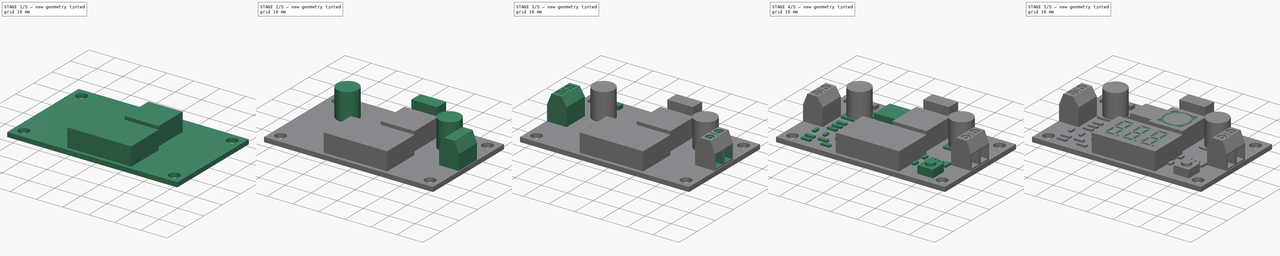
[diagram: build sequence overview — one tinted view per stage of 5, left to right]
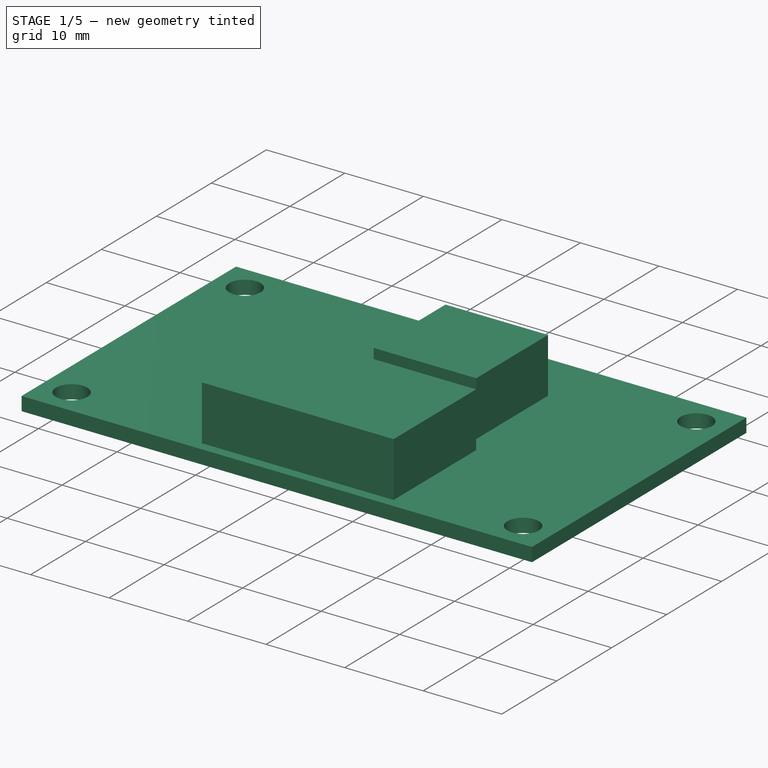
[diagram: stage 1 of 5 — iso view after this stage's code; geometry added in this stage tinted green]
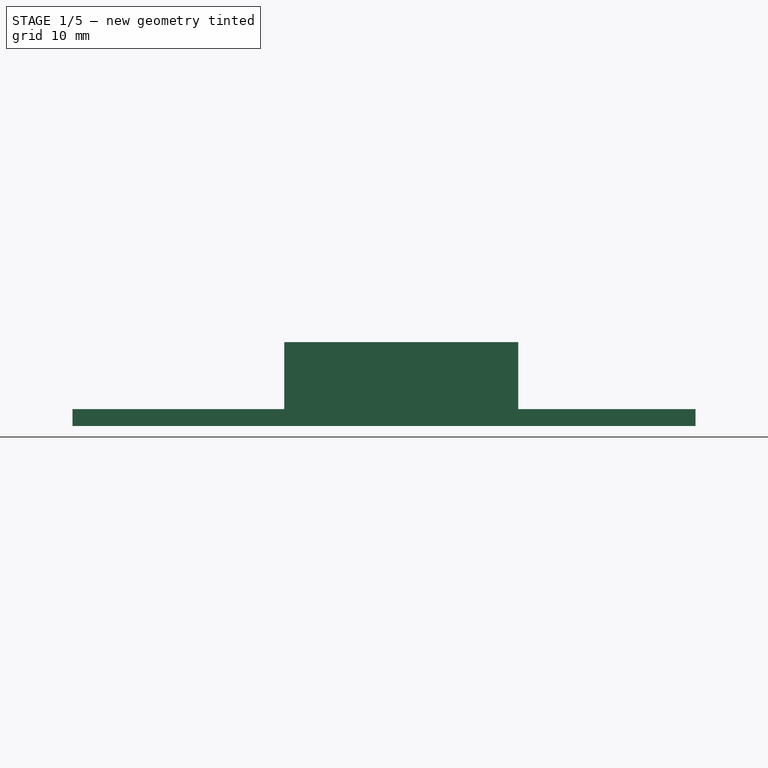
[diagram: stage 1 of 5 — front view after this stage's code; geometry added in this stage tinted green]
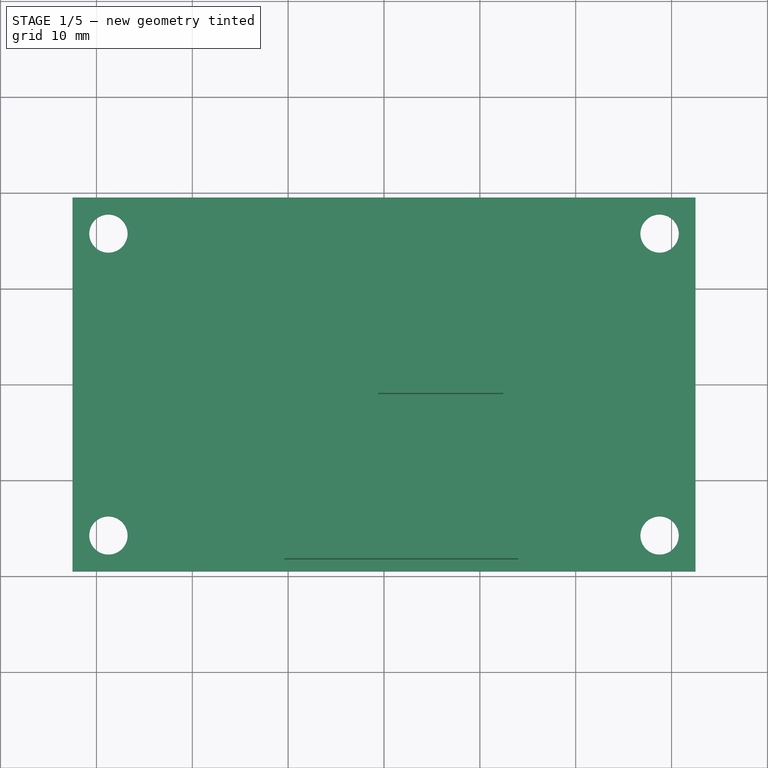
[diagram: stage 1 of 5 — top view after this stage's code; geometry added in this stage tinted green]
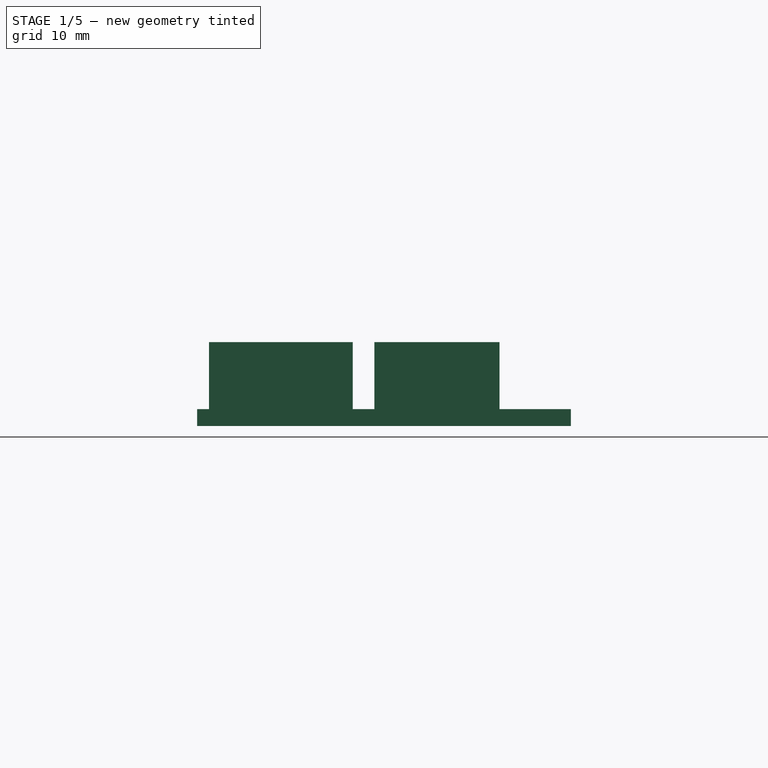
[diagram: stage 1 of 5 — right view after this stage's code; geometry added in this stage tinted green]
FCSTD DOCUMENT  (FreeCAD 1.0R39109 (Git))
Label: regulator
License: All rights reserved
LicenseURL: http://en.wikipedia.org/wiki/All_rights_reserved
objects: Sketcher::SketchObject×18, PartDesign::Pad×11, PartDesign::Pocket×7, Image::ImagePlane×1, PartDesign::Mirrored×1, PartDesign::Fillet×1, PartDesign::LinearPattern×1, PartDesign::Body×1
note: 98 computed .brp shape members not serialized (recipe doc carries the construction recipe); baked Part::Feature solids carry a one-line shape summary decoded from their .brp

FEATURE [Sketcher::SketchObject] Sketch
  ArcFitTolerance = 1e-06
  AttachmentSupport = -> [XY_Plane]
  FullyConstrained = true
  MakeInternals = false
  MapMode = 5
  sketch-geometry (5):
    g0: LineSegment StartX=-32.5 StartY=19.5 StartZ=0 EndX=-32.5 EndY=-19.5 EndZ=0
    g1: LineSegment StartX=-32.5 StartY=-19.5 StartZ=0 EndX=32.5 EndY=-19.5 EndZ=0
    g2: LineSegment StartX=32.5 StartY=-19.5 StartZ=0 EndX=32.5 EndY=19.5 EndZ=0
    g3: LineSegment StartX=32.5 StartY=19.5 StartZ=0 EndX=-32.5 EndY=19.5 EndZ=0
    g4: GeomPoint [constr] X=0 Y=0 Z=0
  constraints (12):
    c: Coincident(g0,g1)
    c: Coincident(g1,g2)
    c: Coincident(g2,g3)
    c: Coincident(g3,g0)
    c: Vertical(g0)
    c: Vertical(g2)
    c: Horizontal(g1)
    c: Horizontal(g3)
    c: Symmetric(g2,g0,g4)
    c: Coincident(g4,g-1)
    c: DistanceY(g2,g2) = 39
    c: DistanceX(g3,g3) = 65
FEATURE [PartDesign::Pad] Pad  label="PCBPad"
  Direction = (0,0,1)
  Length = 1.75
  Length2 = 10
  Profile = -> Sketch
  ReferenceAxis = -> Sketch [N_Axis]
  Refine = true
  Suppressed = false
  Type = 0
FEATURE [Image::ImagePlane] regulator
  Placement = pos=(0,0,0) rot=(0,0,1;1.5708rad)
  XSize = 41.0117
  YSize = 69.7288
  expr: XSize = 126.19 * 0.325 mm
  expr: YSize = 214.55 * 0.325 mm
FEATURE [Sketcher::SketchObject] Sketch001
  ArcFitTolerance = 1e-06
  AttachmentSupport = -> [Pad]
  ExternalGeometry = -> [Pad]
  FullyConstrained = false
  MakeInternals = false
  MapMode = 5
  Placement = pos=(0,0,1.75) rot=(0,0,1;0rad)
  sketch-geometry (12):
    g0: Circle CenterX=28.75 CenterY=-15.75 CenterZ=0 NormalX=0 NormalY=0 NormalZ=1 AngleXU=0 Radius=2
    g1: GeomPoint X=28.75 Y=-17.75 Z=0
    g2: GeomPoint X=30.75 Y=-15.75 Z=0
    g3: Circle CenterX=28.75 CenterY=15.75 CenterZ=0 NormalX=0 NormalY=0 NormalZ=1 AngleXU=0 Radius=2
    g4: GeomPoint X=28.75 Y=17.75 Z=0
    g5: GeomPoint X=30.75 Y=15.75 Z=0
    g6: Circle CenterX=-28.75 CenterY=-15.75 CenterZ=0 NormalX=0 NormalY=0 NormalZ=1 AngleXU=0 Radius=2
    g7: GeomPoint X=-28.75 Y=-17.75 Z=0
    g8: GeomPoint X=-30.75 Y=-15.75 Z=0
    g9: Circle CenterX=-28.75 CenterY=15.75 CenterZ=0 NormalX=0 NormalY=0 NormalZ=1 AngleXU=0 Radius=2
    g10: GeomPoint X=-28.75 Y=17.75 Z=0
    g11: GeomPoint X=-30.75 Y=15.75 Z=0
  constraints (16):
    c: Radius(g0) = 2
    c: PointOnObject(g1,g0)
    c: PointOnObject(g2,g0)
    c: Horizontal(g2,g0)
    c: Vertical(g1,g0)
    c: DistanceX(g2,g-4) = 1.75
    c: DistanceY(g-4,g1) = 1.75
    c: Radius(g3) = 2
    c: PointOnObject(g4,g3)
    c: PointOnObject(g5,g3)
    c: Radius(g6) = 2
    c: PointOnObject(g7,g6)
    c: PointOnObject(g8,g6)
    c: Radius(g9) = 2
    c: PointOnObject(g10,g9)
    c: PointOnObject(g11,g9)
FEATURE [PartDesign::Pocket] Pocket  label="ScrewPocket"
  BaseFeature = -> Pad
  Direction = (0,0,-1)
  Length = 5
  Length2 = 5
  Profile = -> Sketch001
  ReferenceAxis = -> Sketch001 [N_Axis]
  Refine = true
  Suppressed = false
  Type = 2
FEATURE [Sketcher::SketchObject] Sketch002
  ArcFitTolerance = 1e-06
  AttachmentSupport = -> [Pocket]
  FullyConstrained = true
  MakeInternals = false
  MapMode = 5
  Placement = pos=(0,0,1.75) rot=(0,0,1;0rad)
  sketch-geometry (4):
    g0: LineSegment StartX=-10.405 StartY=-3.263 StartZ=0 EndX=-10.405 EndY=-18.263 EndZ=0
    g1: LineSegment StartX=-10.405 StartY=-18.263 StartZ=0 EndX=14.012 EndY=-18.263 EndZ=0
    g2: LineSegment StartX=14.012 StartY=-18.263 StartZ=0 EndX=14.012 EndY=-3.263 EndZ=0
    g3: LineSegment StartX=14.012 StartY=-3.263 StartZ=0 EndX=-10.405 EndY=-3.263 EndZ=0
  constraints (12):
    c: Coincident(g0,g1)
    c: Coincident(g1,g2)
    c: Coincident(g2,g3)
    c: Coincident(g3,g0)
    c: Vertical(g0)
    c: Vertical(g2)
    c: Horizontal(g1)
    c: Horizontal(g3)
    c: DistanceY(g2,g2) = 15
    c: DistanceX(g1,g1) = 24.417
    c: DistanceY(g0,g-1) = 3.263
    c: DistanceX(g-1,g2) = 14.012
FEATURE [PartDesign::Pad] Pad001  label="OctScreenPad"
  BaseFeature = -> Pocket
  Direction = (0,0,1)
  Length = 7
  Length2 = 10
  Profile = -> Sketch002
  ReferenceAxis = -> Sketch002 [N_Axis]
  Refine = true
  Suppressed = false
  Type = 0
FEATURE [Sketcher::SketchObject] Sketch003
  ArcFitTolerance = 1e-06
  AttachmentSupport = -> [Pad001]
  FullyConstrained = true
  MakeInternals = false
  MapMode = 5
  Placement = pos=(0,0,1.75) rot=(0,0,1;0rad)
  sketch-geometry (4):
    g0: LineSegment StartX=-0.612 StartY=12.053 StartZ=0 EndX=-0.612 EndY=-1.005 EndZ=0
    g1: LineSegment StartX=-0.612 StartY=-1.005 StartZ=0 EndX=12.446 EndY=-1.005 EndZ=0
    g2: LineSegment StartX=12.446 StartY=-1.005 StartZ=0 EndX=12.446 EndY=12.053 EndZ=0
    g3: LineSegment StartX=12.446 StartY=12.053 StartZ=0 EndX=-0.612 EndY=12.053 EndZ=0
  constraints (12):
    c: Coincident(g0,g1)
    c: Coincident(g1,g2)
    c: Coincident(g2,g3)
    c: Coincident(g3,g0)
    c: Vertical(g0)
    c: Vertical(g2)
    c: Horizontal(g1)
    c: Horizontal(g3)
    c: Equal(g1,g2)
    c: DistanceY(g0,g-1) = 1.005
    c: DistanceX(g0,g-1) = 0.612
    c: DistanceX(g1,g1) = 13.058
FEATURE [PartDesign::Pad] Pad002  label="470Pad"
  BaseFeature = -> Pad001
  Direction = (0,0,1)
  Length = 7
  Length2 = 10
  Profile = -> Sketch003
  ReferenceAxis = -> Sketch003 [N_Axis]
  Refine = true
  Suppressed = false
  Type = 0
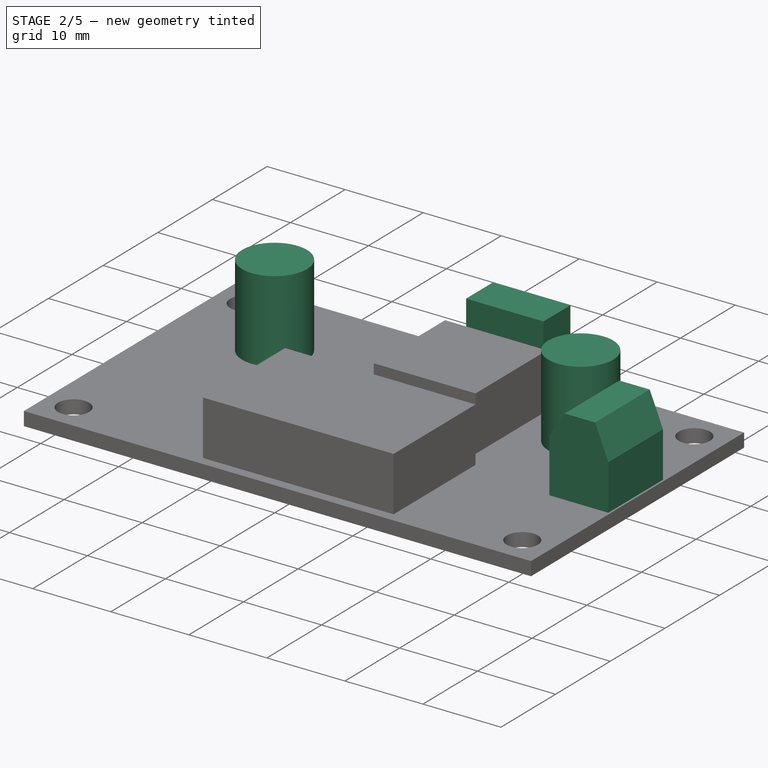
[diagram: stage 2 of 5 — iso view after this stage's code; geometry added in this stage tinted green]
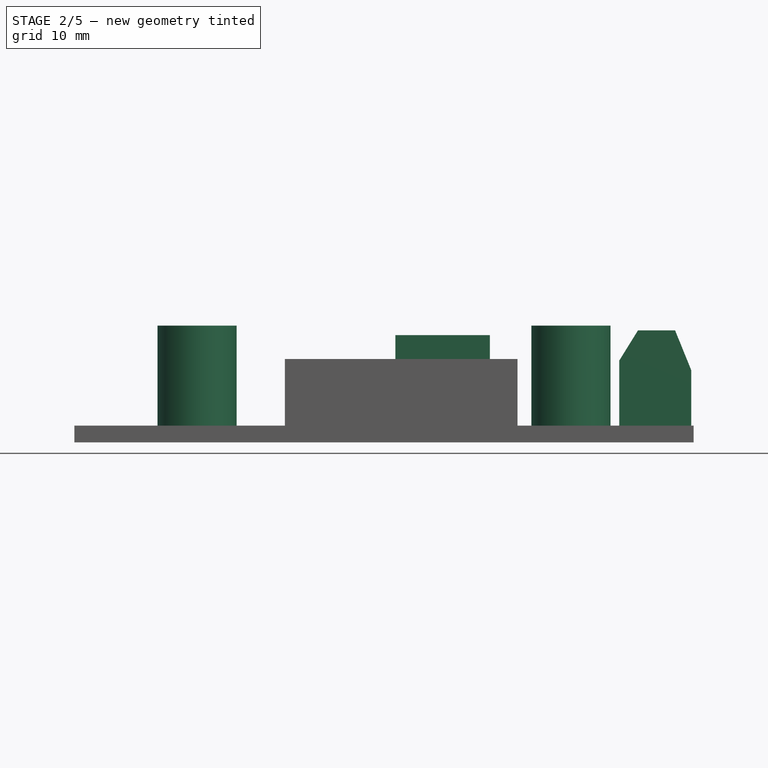
[diagram: stage 2 of 5 — front view after this stage's code; geometry added in this stage tinted green]
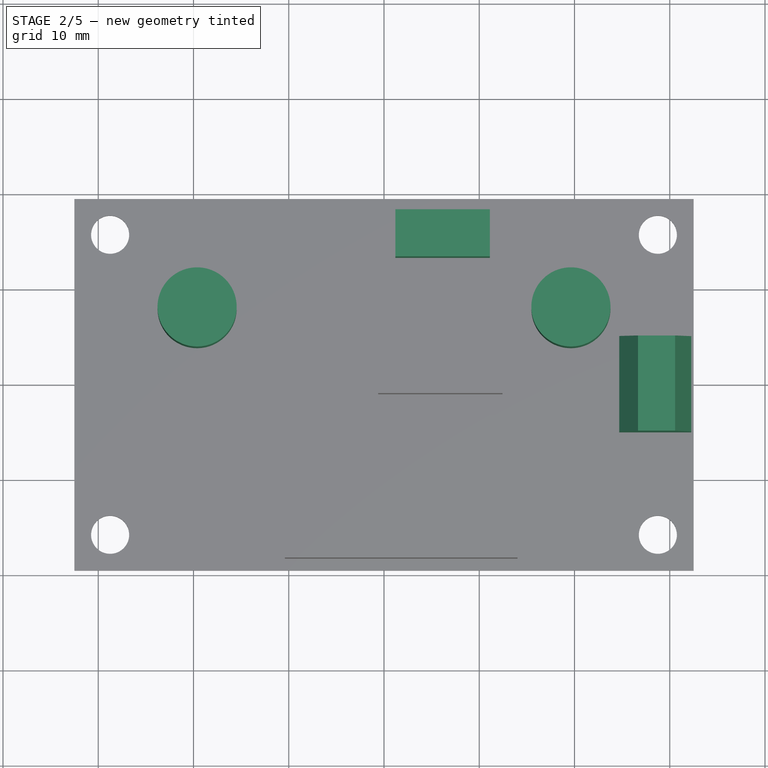
[diagram: stage 2 of 5 — top view after this stage's code; geometry added in this stage tinted green]
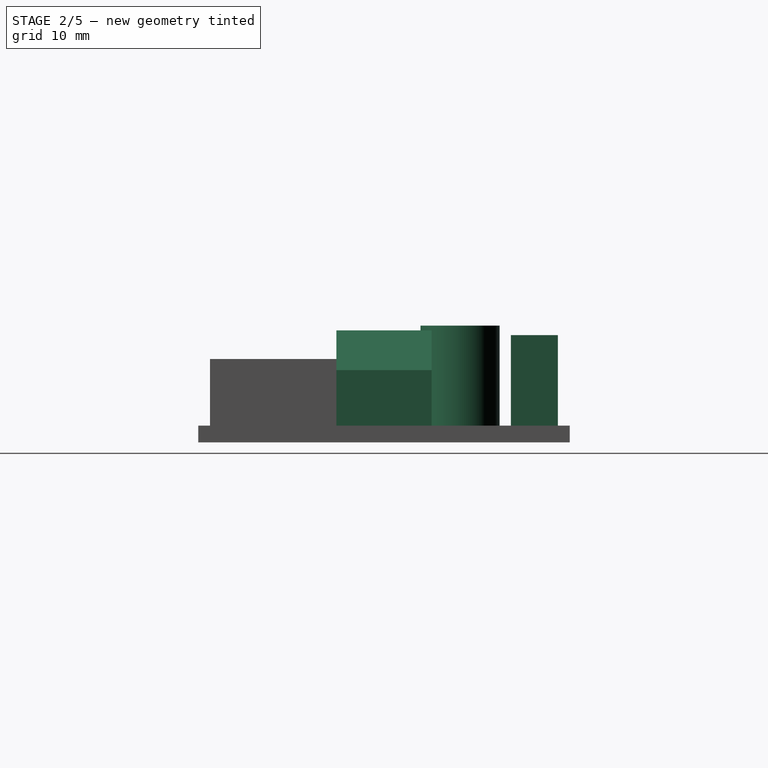
[diagram: stage 2 of 5 — right view after this stage's code; geometry added in this stage tinted green]
FEATURE [Sketcher::SketchObject] Sketch004
  ArcFitTolerance = 1e-06
  AttachmentSupport = -> [Pad002]
  FullyConstrained = true
  MakeInternals = false
  MapMode = 5
  Placement = pos=(0,0,1.75) rot=(0,0,1;0rad)
  sketch-geometry (2):
    g0: Circle CenterX=-19.621 CenterY=7.988 CenterZ=0 NormalX=0 NormalY=0 NormalZ=1 AngleXU=0 Radius=4.155
    g1: Circle CenterX=19.621 CenterY=7.988 CenterZ=0 NormalX=0 NormalY=0 NormalZ=1 AngleXU=0 Radius=4.155
  constraints (5):
    c: Symmetric(g0,g1,g-2)
    c: Equal(g0,g1)
    c: Radius(g1) = 4.155
    c: DistanceY(g-1,g0) = 7.988
    c: DistanceX(g0,g1) = 39.242
FEATURE [PartDesign::Pad] Pad003  label="CapacitorPads"
  BaseFeature = -> Pad002
  Direction = (0,0,1)
  Length = 10.5
  Length2 = 10
  Profile = -> Sketch004
  ReferenceAxis = -> Sketch004 [N_Axis]
  Refine = true
  Suppressed = false
  Type = 0
FEATURE [Sketcher::SketchObject] Sketch005
  ArcFitTolerance = 1e-06
  AttachmentSupport = -> [Pad003]
  FullyConstrained = true
  MakeInternals = false
  MapMode = 5
  Placement = pos=(0,0,1.75) rot=(0,0,1;0rad)
  sketch-geometry (4):
    g0: LineSegment StartX=1.196 StartY=18.256 StartZ=0 EndX=1.196 EndY=13.317 EndZ=0
    g1: LineSegment StartX=1.196 StartY=13.317 StartZ=0 EndX=11.109 EndY=13.317 EndZ=0
    g2: LineSegment StartX=11.109 StartY=13.317 StartZ=0 EndX=11.109 EndY=18.256 EndZ=0
    g3: LineSegment StartX=11.109 StartY=18.256 StartZ=0 EndX=1.196 EndY=18.256 EndZ=0
  constraints (12):
    c: Coincident(g0,g1)
    c: Coincident(g1,g2)
    c: Coincident(g2,g3)
    c: Coincident(g3,g0)
    c: Vertical(g0)
    c: Vertical(g2)
    c: Horizontal(g1)
    c: Horizontal(g3)
    c: DistanceY(g2,g2) = 4.939
    c: DistanceX(g3,g3) = 9.913
    c: DistanceY(g0) = 13.317
    c: DistanceX(g0) = 1.196
FEATURE [PartDesign::Pad] Pad004  label="RegPad"
  BaseFeature = -> Pad003
  Direction = (0,0,1)
  Length = 9.5
  Length2 = 10
  Profile = -> Sketch005
  ReferenceAxis = -> Sketch005 [N_Axis]
  Refine = true
  Suppressed = false
  Type = 0
FEATURE [Sketcher::SketchObject] Sketch006
  ArcFitTolerance = 1e-06
  AttachmentSupport = -> [Pad004]
  ExternalGeometry = -> [Pad004]
  FullyConstrained = true
  MakeInternals = false
  MapMode = 5
  Placement = pos=(0,0,1.75) rot=(0,0,1;0rad)
  sketch-geometry (4):
    g0: LineSegment StartX=32.25 StartY=5 StartZ=0 EndX=24.7 EndY=5 EndZ=0
    g1: LineSegment StartX=24.7 StartY=5 StartZ=0 EndX=24.7 EndY=-5 EndZ=0
    g2: LineSegment StartX=24.7 StartY=-5 StartZ=0 EndX=32.25 EndY=-5 EndZ=0
    g3: LineSegment StartX=32.25 StartY=-5 StartZ=0 EndX=32.25 EndY=5 EndZ=0
  constraints (11):
    c: Coincident(g0,g1)
    c: Coincident(g1,g2)
    c: Coincident(g2,g3)
    c: Coincident(g3,g0)
    c: Horizontal(g0)
    c: Horizontal(g2)
    c: Vertical(g1)
    c: Symmetric(g2,g0,g-1)
    c: DistanceX(g2,g2) = 7.55
    c: DistanceY(g1,g1) = 10
    c: DistanceX(g0,g-3) = 0.25
FEATURE [PartDesign::Pad] Pad005  label="BorneraPad"
  BaseFeature = -> Pad004
  Direction = (0,0,1)
  Length = 10
  Length2 = 10
  Profile = -> Sketch006
  ReferenceAxis = -> Sketch006 [N_Axis]
  Refine = true
  Suppressed = false
  Type = 0
FEATURE [Sketcher::SketchObject] Sketch007
  ArcFitTolerance = 1e-06
  AttachmentSupport = -> [Pad005]
  ExternalGeometry = -> [Pad005]
  FullyConstrained = false
  MakeInternals = false
  MapMode = 5
  Placement = pos=(0,-5,0) rot=(1,0,0;1.5708rad)
  sketch-geometry (6):
    g0: LineSegment StartX=32.25 StartY=7.588 StartZ=0 EndX=30.5611 EndY=11.75 EndZ=0
    g1: LineSegment StartX=30.5611 StartY=11.75 StartZ=0 EndX=32.25 EndY=11.75 EndZ=0
    g2: LineSegment StartX=32.25 StartY=11.75 StartZ=0 EndX=32.25 EndY=7.588 EndZ=0
    g3: LineSegment StartX=24.7 StartY=11.75 StartZ=0 EndX=24.7 EndY=8.588 EndZ=0
    g4: LineSegment StartX=24.7 StartY=8.588 StartZ=0 EndX=26.6611 EndY=11.75 EndZ=0
    g5: LineSegment StartX=26.6611 StartY=11.75 StartZ=0 EndX=24.7 EndY=11.75 EndZ=0
  constraints (15):
    c: PointOnObject(g0,g-4)
    c: PointOnObject(g0,g-3)
    c: Coincident(g0,g1)
    c: Coincident(g1,g-4)
    c: Coincident(g1,g2)
    c: Coincident(g2,g0)
    c: Coincident(g-3,g3)
    c: Vertical(g3)
    c: Coincident(g3,g4)
    c: PointOnObject(g4,g-3)
    c: Coincident(g4,g5)
    c: Coincident(g5,g3)
    c: DistanceX(g4,g0) = 3.9
    c: DistanceY(g0,g1) = 4.162
    c: DistanceY(g0,g3) = 1
FEATURE [PartDesign::Pocket] Pocket001  label="BorneraContourPocket"
  BaseFeature = -> Pad005
  Direction = (0,1,-2e-16)
  Length = 5
  Length2 = 5
  Profile = -> Sketch007
  ReferenceAxis = -> Sketch007 [N_Axis]
  Refine = true
  Suppressed = false
  Type = 2
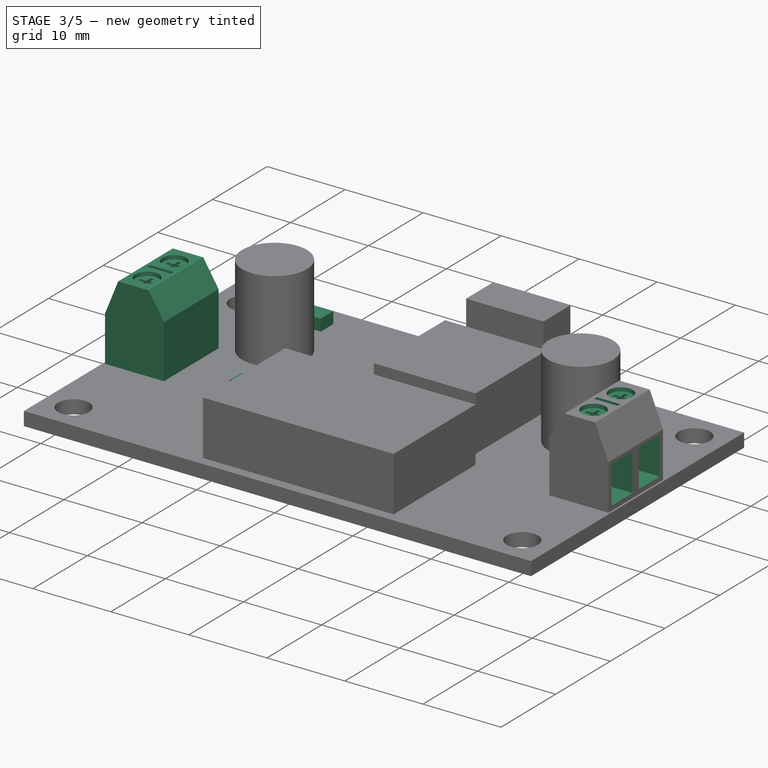
[diagram: stage 3 of 5 — iso view after this stage's code; geometry added in this stage tinted green]
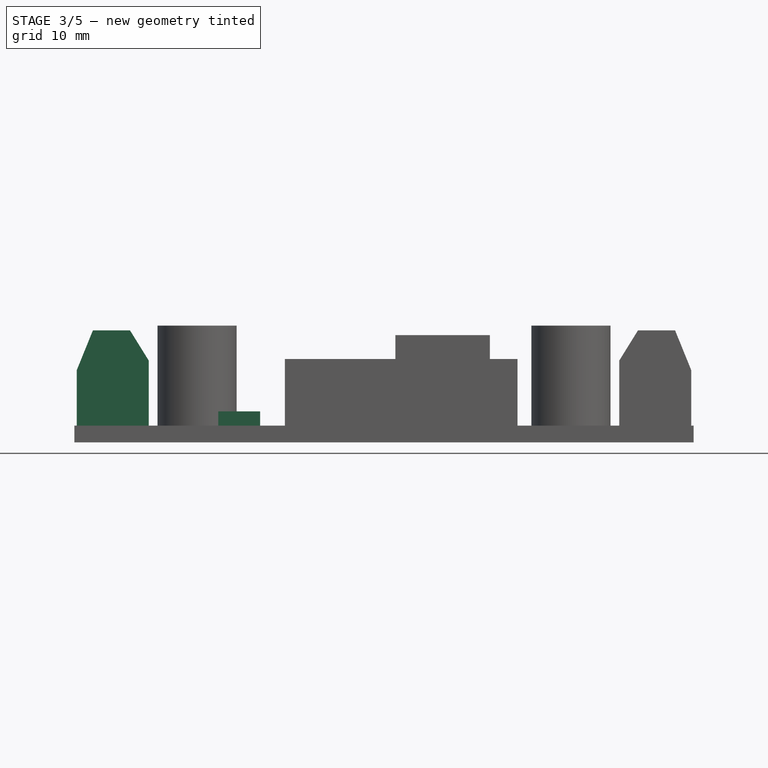
[diagram: stage 3 of 5 — front view after this stage's code; geometry added in this stage tinted green]
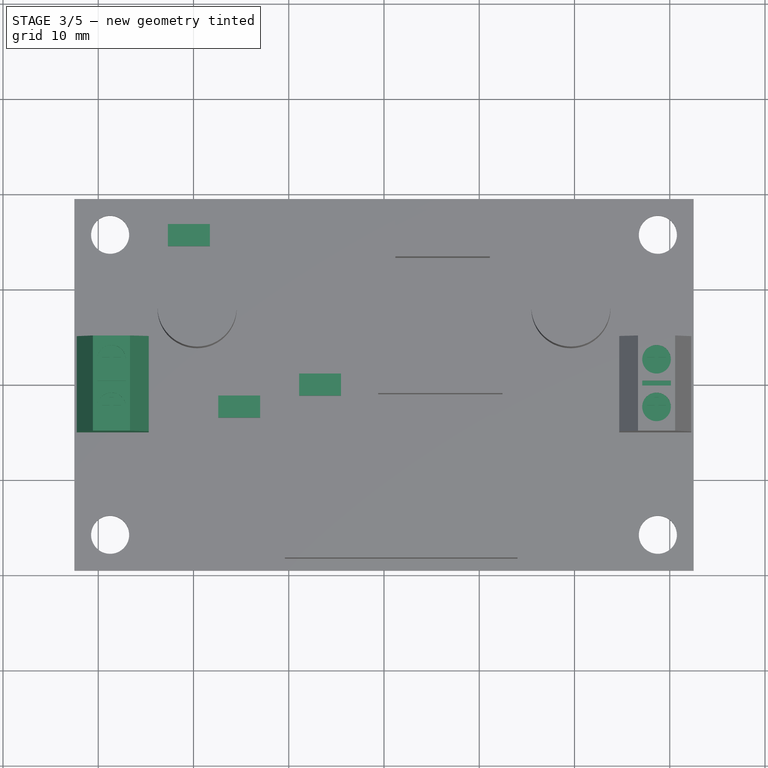
[diagram: stage 3 of 5 — top view after this stage's code; geometry added in this stage tinted green]
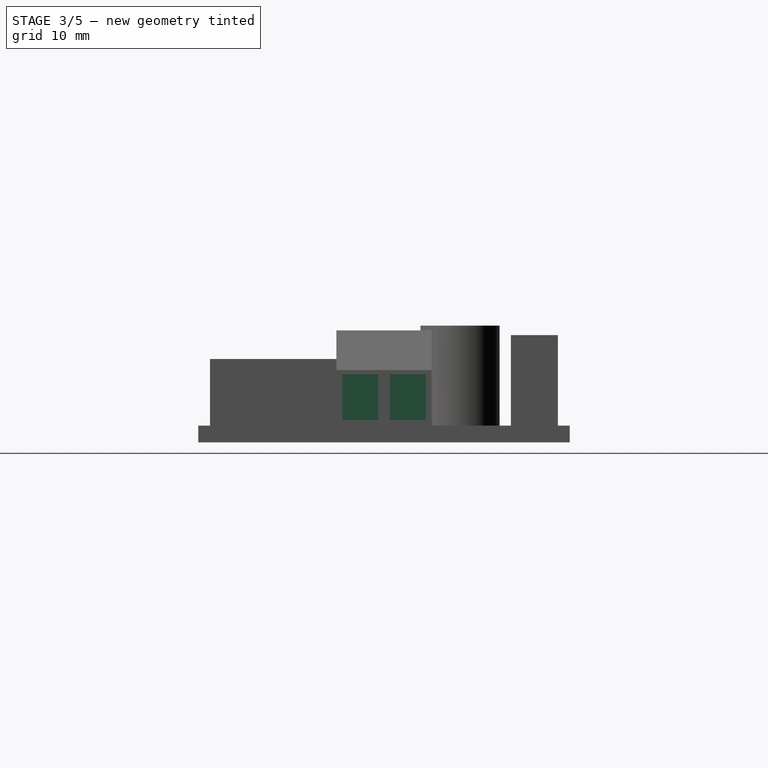
[diagram: stage 3 of 5 — right view after this stage's code; geometry added in this stage tinted green]
FEATURE [Sketcher::SketchObject] Sketch008
  ArcFitTolerance = 1e-06
  AttachmentSupport = -> [Pocket001]
  ExternalGeometry = -> [Pocket001]
  FullyConstrained = true
  MakeInternals = false
  MapMode = 5
  Placement = pos=(32.25,0,0) rot=(0.57735,0.57735,0.57735;2.0944rad)
  sketch-geometry (8):
    g0: LineSegment StartX=-4.4 StartY=7.15 StartZ=0 EndX=-4.4 EndY=2.35 EndZ=0
    g1: LineSegment StartX=-4.4 StartY=2.35 StartZ=0 EndX=-0.6 EndY=2.35 EndZ=0
    g2: LineSegment StartX=-0.6 StartY=2.35 StartZ=0 EndX=-0.6 EndY=7.15 EndZ=0
    g3: LineSegment StartX=-0.6 StartY=7.15 StartZ=0 EndX=-4.4 EndY=7.15 EndZ=0
    g4: LineSegment StartX=0.6 StartY=7.15 StartZ=0 EndX=0.6 EndY=2.35 EndZ=0
    g5: LineSegment StartX=0.6 StartY=2.35 StartZ=0 EndX=4.4 EndY=2.35 EndZ=0
    g6: LineSegment StartX=4.4 StartY=2.35 StartZ=0 EndX=4.4 EndY=7.15 EndZ=0
    g7: LineSegment StartX=4.4 StartY=7.15 StartZ=0 EndX=0.6 EndY=7.15 EndZ=0
  constraints (23):
    c: Coincident(g0,g1)
    c: Coincident(g1,g2)
    c: Coincident(g2,g3)
    c: Coincident(g3,g0)
    c: Vertical(g0)
    c: Vertical(g2)
    c: Horizontal(g1)
    c: Horizontal(g3)
    c: Coincident(g4,g5)
    c: Coincident(g5,g6)
    c: Coincident(g6,g7)
    c: Coincident(g7,g4)
    c: Vertical(g4)
    c: Vertical(g6)
    c: Horizontal(g5)
    c: Horizontal(g7)
    c: Equal(g3,g7)
    c: Horizontal(g4,g1)
    c: DistanceX(g3,g3) = 3.8
    c: DistanceY(g0,g0) = 4.8
    c: Symmetric(g4,g2,g-2)
    c: DistanceY(g-4,g5) = 0.6
    c: DistanceX(g2,g4) = 1.2
FEATURE [PartDesign::Pocket] Pocket002  label="BorneraConnPockets"
  BaseFeature = -> Pocket001
  Direction = (-1,0,0)
  Length = 5
  Length2 = 5
  Profile = -> Sketch008
  ReferenceAxis = -> Sketch008 [N_Axis]
  Refine = true
  Suppressed = false
  Type = 0
FEATURE [Sketcher::SketchObject] Sketch009
  ArcFitTolerance = 1e-06
  AttachmentSupport = -> [Pocket002]
  ExternalGeometry = -> [Pocket002]
  FullyConstrained = true
  MakeInternals = false
  MapMode = 5
  Placement = pos=(0,0,11.75) rot=(0,0,1;0rad)
  sketch-geometry (11):
    g0: GeomPoint X=30.5611 Y=9e-16 Z=0
    g1: GeomPoint X=28.6111 Y=5 Z=0
    g2: Circle CenterX=28.6111 CenterY=2.5 CenterZ=0 NormalX=0 NormalY=0 NormalZ=1 AngleXU=0 Radius=1.5
    g3: Circle CenterX=28.6111 CenterY=-2.5 CenterZ=0 NormalX=0 NormalY=0 NormalZ=1 AngleXU=0 Radius=1.5
    g4: LineSegment StartX=27.1111 StartY=0.25 StartZ=0 EndX=27.1111 EndY=-0.25 EndZ=0
    g5: LineSegment StartX=27.1111 StartY=-0.25 StartZ=0 EndX=30.1111 EndY=-0.25 EndZ=0
    g6: LineSegment StartX=30.1111 StartY=-0.25 StartZ=0 EndX=30.1111 EndY=0.25 EndZ=0
    g7: LineSegment StartX=30.1111 StartY=0.25 StartZ=0 EndX=27.1111 EndY=0.25 EndZ=0
    g8: GeomPoint X=28.6111 Y=0.25 Z=0
    g9: LineSegment [constr] StartX=30.5611 StartY=5 StartZ=0 EndX=30.5611 EndY=9e-16 EndZ=0
    g10: GeomPoint [constr] X=30.5611 Y=2.5 Z=0
  constraints (22):
    c: Symmetric(g-4,g-4,g0)
    c: Symmetric(g-3,g-3,g1)
    c: Coincident(g4,g5)
    c: Coincident(g5,g6)
    c: Coincident(g6,g7)
    c: Coincident(g7,g4)
    c: Vertical(g4)
    c: Horizontal(g5)
    c: Horizontal(g7)
    c: Symmetric(g7,g7,g8)
    c: Symmetric(g6,g5,g-1)
    c: Symmetric(g2,g3,g-1)
    c: Equal(g2,g3)
    c: Radius(g2) = 1.5
    c: Tangent(g6,g3)
    c: Tangent(g4,g3)
    c: Vertical(g8,g1)
    c: DistanceY(g6,g6) = 0.5
    c: Coincident(g9,g-4)
    c: Coincident(g9,g0)
    c: Symmetric(g9,g9,g10)
    c: Horizontal(g2,g10)
FEATURE [PartDesign::Pocket] Pocket003  label="BorneraScrewPocket"
  BaseFeature = -> Pocket002
  Direction = (0,0,-1)
  Length = 0.5
  Length2 = 5
  Profile = -> Sketch009
  ReferenceAxis = -> Sketch009 [N_Axis]
  Refine = true
  Suppressed = false
  Type = 0
FEATURE [Sketcher::SketchObject] Sketch010
  ArcFitTolerance = 1e-06
  AttachmentSupport = -> [Pocket003]
  ExternalGeometry = -> [Pocket003]
  FullyConstrained = false
  MakeInternals = false
  MapMode = 5
  Placement = pos=(0,0,11.25) rot=(0,0,1;0rad)
  sketch-geometry (24):
    g0: LineSegment StartX=28.4111 StartY=3.5 StartZ=0 EndX=28.4111 EndY=2.7 EndZ=0
    g1: LineSegment StartX=28.4111 StartY=2.7 StartZ=0 EndX=27.6111 EndY=2.7 EndZ=0
    g2: LineSegment StartX=27.6111 StartY=2.7 StartZ=0 EndX=27.6111 EndY=2.3 EndZ=0
    g3: LineSegment StartX=27.6111 StartY=2.3 StartZ=0 EndX=28.4111 EndY=2.3 EndZ=0
    g4: LineSegment StartX=28.4111 StartY=2.3 StartZ=0 EndX=28.4111 EndY=1.5 EndZ=0
    g5: LineSegment StartX=28.4111 StartY=1.5 StartZ=0 EndX=28.8111 EndY=1.5 EndZ=0
    g6: LineSegment StartX=28.8111 StartY=1.5 StartZ=0 EndX=28.8111 EndY=2.3 EndZ=0
    g7: LineSegment StartX=28.8111 StartY=2.3 StartZ=0 EndX=29.6111 EndY=2.3 EndZ=0
    g8: LineSegment StartX=29.6111 StartY=2.3 StartZ=0 EndX=29.6111 EndY=2.7 EndZ=0
    g9: LineSegment StartX=29.6111 StartY=2.7 StartZ=0 EndX=28.8111 EndY=2.7 EndZ=0
    g10: LineSegment StartX=28.8111 StartY=2.7 StartZ=0 EndX=28.8111 EndY=3.5 EndZ=0
    g11: LineSegment StartX=28.8111 StartY=3.5 StartZ=0 EndX=28.4111 EndY=3.5 EndZ=0
    g12: LineSegment StartX=28.4111 StartY=-3.5 StartZ=0 EndX=28.4111 EndY=-2.7 EndZ=0
    g13: LineSegment StartX=28.4111 StartY=-2.7 StartZ=0 EndX=27.6111 EndY=-2.7 EndZ=0
    g14: LineSegment StartX=27.6111 StartY=-2.7 StartZ=0 EndX=27.6111 EndY=-2.3 EndZ=0
    g15: LineSegment StartX=27.6111 StartY=-2.3 StartZ=0 EndX=28.4111 EndY=-2.3 EndZ=0
    g16: LineSegment StartX=28.4111 StartY=-2.3 StartZ=0 EndX=28.4111 EndY=-1.5 EndZ=0
    g17: LineSegment StartX=28.4111 StartY=-1.5 StartZ=0 EndX=28.8111 EndY=-1.5 EndZ=0
    g18: LineSegment StartX=28.8111 StartY=-1.5 StartZ=0 EndX=28.8111 EndY=-2.3 EndZ=0
    g19: LineSegment StartX=28.8111 StartY=-2.3 StartZ=0 EndX=29.6111 EndY=-2.3 EndZ=0
    g20: LineSegment StartX=29.6111 StartY=-2.3 StartZ=0 EndX=29.6111 EndY=-2.7 EndZ=0
    g21: LineSegment StartX=29.6111 StartY=-2.7 StartZ=0 EndX=28.8111 EndY=-2.7 EndZ=0
    g22: LineSegment StartX=28.8111 StartY=-2.7 StartZ=0 EndX=28.8111 EndY=-3.5 EndZ=0
    g23: LineSegment StartX=28.8111 StartY=-3.5 StartZ=0 EndX=28.4111 EndY=-3.5 EndZ=0
  constraints (63):
    c: Vertical(g0)
    c: Coincident(g0,g1)
    c: Horizontal(g1)
    c: Coincident(g1,g2)
    c: Coincident(g2,g3)
    c: Coincident(g3,g4)
    c: Coincident(g4,g5)
    c: Coincident(g5,g6)
    c: Coincident(g6,g7)
    c: Coincident(g7,g8)
    c: Coincident(g8,g9)
    c: Coincident(g9,g10)
    c: Vertical(g10)
    c: Coincident(g10,g11)
    c: Coincident(g11,g0)
    c: Vertical(g6)
    c: Vertical(g4)
    c: Horizontal(g3)
    c: Horizontal(g7)
    c: Horizontal(g9)
    c: Vertical(g8)
    c: Vertical(g0,g3)
    c: Vertical(g9,g6)
    c: Horizontal(g5)
    c: Horizontal(g3,g6)
    c: Horizontal(g9,g0)
    c: Horizontal(g11)
    c: Equal(g11,g8)
    c: Equal(g9,g10)
    c: Equal(g10,g6)
    c: Symmetric(g0,g6,g-3)
    c: Equal(g1,g0)
    c: Vertical(g2)
    c: DistanceY(g8,g8) = 0.4
    c: DistanceY(g10,g10) = 0.8
    c: Vertical(g12)
    c: Coincident(g12,g13)
    c: Horizontal(g13)
    c: Coincident(g13,g14)
    c: Coincident(g14,g15)
    c: Coincident(g15,g16)
    c: Coincident(g16,g17)
    c: Coincident(g17,g18)
    c: Coincident(g18,g19)
    c: Coincident(g19,g20)
    c: Coincident(g20,g21)
    c: Coincident(g21,g22)
    c: Vertical(g22)
    c: Coincident(g22,g23)
    c: Coincident(g23,g12)
    c: Vertical(g18)
    c: Vertical(g16)
    c: Horizontal(g15)
    c: Horizontal(g19)
    c: Horizontal(g21)
    c: Vertical(g20)
    c: Horizontal(g17)
    c: Horizontal(g23)
    c: Equal(g23,g20)
    c: Equal(g21,g22)
    c: Equal(g22,g18)
    c: Equal(g13,g12)
    c: Vertical(g14)
FEATURE [PartDesign::Pocket] Pocket004  label="ScrewPatternPocket"
  BaseFeature = -> Pocket003
  Direction = (0,0,-1)
  Length = 0.5
  Length2 = 5
  Profile = -> Sketch010
  ReferenceAxis = -> Sketch010 [N_Axis]
  Refine = true
  Suppressed = false
  Type = 0
FEATURE [PartDesign::Mirrored] Mirrored  label="BorneraMirror"
  BaseFeature = -> Pocket004
  MirrorPlane = -> Sketch006 [V_Axis]
  Originals = -> [Pad005,Pocket001,Pocket002,Pocket003,Pocket004]
  Refine = true
  Suppressed = false
  TransformMode = 0
FEATURE [Sketcher::SketchObject] Sketch011
  ArcFitTolerance = 1e-06
  AttachmentSupport = -> [Pocket004]
  FullyConstrained = true
  MakeInternals = false
  MapMode = 5
  Placement = pos=(0,0,1.75) rot=(0,0,1;0rad)
  sketch-geometry (12):
    g0: LineSegment StartX=-22.691 StartY=16.8485 StartZ=0 EndX=-22.691 EndY=14.5335 EndZ=0
    g1: LineSegment StartX=-22.691 StartY=14.5335 StartZ=0 EndX=-18.285 EndY=14.5335 EndZ=0
    g2: LineSegment StartX=-18.285 StartY=14.5335 StartZ=0 EndX=-18.285 EndY=16.8485 EndZ=0
    g3: LineSegment StartX=-18.285 StartY=16.8485 StartZ=0 EndX=-22.691 EndY=16.8485 EndZ=0
    g4: LineSegment StartX=-17.404 StartY=-1.1575 StartZ=0 EndX=-17.404 EndY=-3.4725 EndZ=0
    g5: LineSegment StartX=-17.404 StartY=-3.4725 StartZ=0 EndX=-12.998 EndY=-3.4725 EndZ=0
    g6: LineSegment StartX=-12.998 StartY=-3.4725 StartZ=0 EndX=-12.998 EndY=-1.1575 EndZ=0
    g7: LineSegment StartX=-12.998 StartY=-1.1575 StartZ=0 EndX=-17.404 EndY=-1.1575 EndZ=0
    g8: LineSegment StartX=-8.914 StartY=1.1575 StartZ=0 EndX=-8.914 EndY=-1.1575 EndZ=0
    g9: LineSegment StartX=-8.914 StartY=-1.1575 StartZ=0 EndX=-4.508 EndY=-1.1575 EndZ=0
    g10: LineSegment StartX=-4.508 StartY=-1.1575 StartZ=0 EndX=-4.508 EndY=1.1575 EndZ=0
    g11: LineSegment StartX=-4.508 StartY=1.1575 StartZ=0 EndX=-8.914 EndY=1.1575 EndZ=0
  constraints (35):
    c: Coincident(g0,g1)
    c: Coincident(g1,g2)
    c: Coincident(g2,g3)
    c: Coincident(g3,g0)
    c: Vertical(g0)
    c: Vertical(g2)
    c: Horizontal(g1)
    c: Horizontal(g3)
    c: Coincident(g4,g5)
    c: Coincident(g5,g6)
    c: Coincident(g6,g7)
    c: Coincident(g7,g4)
    c: Vertical(g4)
    c: Vertical(g6)
    c: Horizontal(g5)
    c: Horizontal(g7)
    c: Coincident(g8,g9)
    c: Coincident(g9,g10)
    c: Coincident(g10,g11)
    c: Coincident(g11,g8)
    c: Vertical(g8)
    c: Horizontal(g9)
    c: Horizontal(g11)
    c: Equal(g11,g7)
    c: Equal(g7,g3)
    c: Equal(g2,g10)
    c: Equal(g10,g6)
    c: DistanceX(g5,g5) = 4.406
    c: DistanceY(g4,g4) = 2.315
    c: DistanceX(g5,g8) = 4.084
    c: Horizontal(g6,g8)
    c: Symmetric(g10,g9,g-1)
    c: DistanceX(g10,g-1) = 4.508
    c: DistanceY(g8,g1) = 13.376
    c: DistanceX(g1,g8) = 9.371
FEATURE [PartDesign::Pad] Pad006  label="ElectronicsPad"
  BaseFeature = -> Mirrored
  Direction = (0,0,1)
  Length = 1.5
  Length2 = 10
  Profile = -> Sketch011
  ReferenceAxis = -> Sketch011 [N_Axis]
  Refine = true
  Suppressed = false
  Type = 0
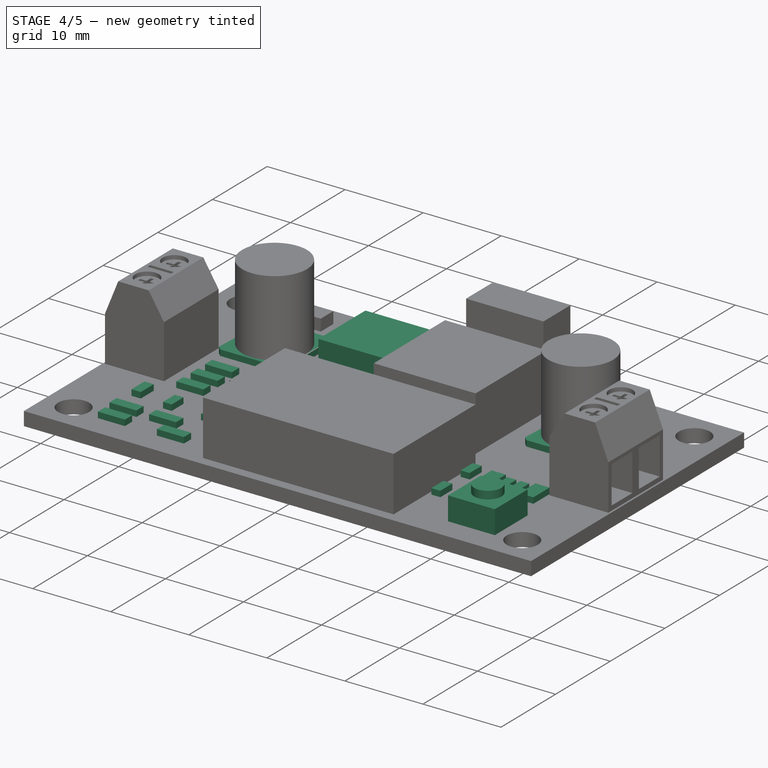
[diagram: stage 4 of 5 — iso view after this stage's code; geometry added in this stage tinted green]
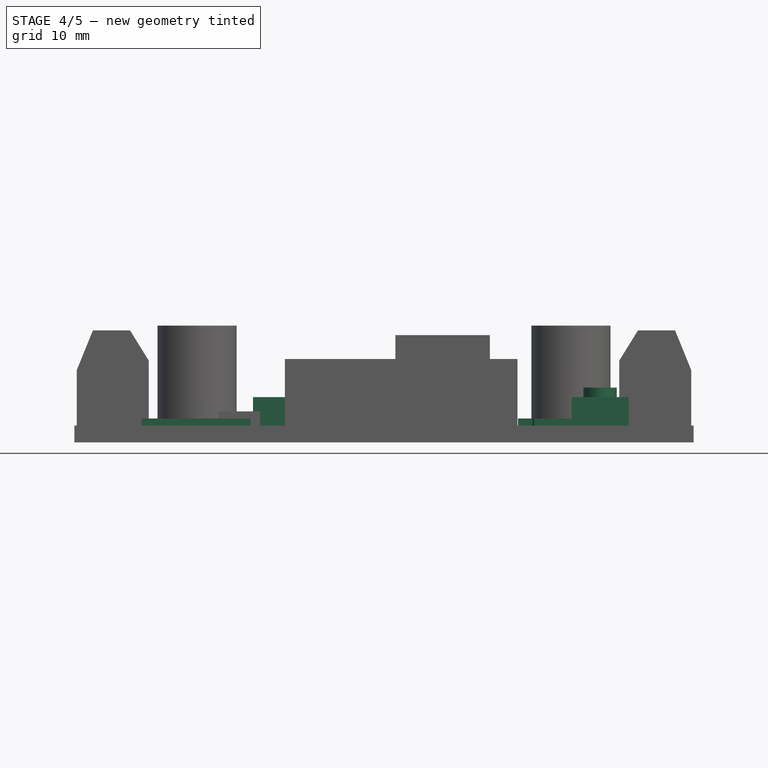
[diagram: stage 4 of 5 — front view after this stage's code; geometry added in this stage tinted green]
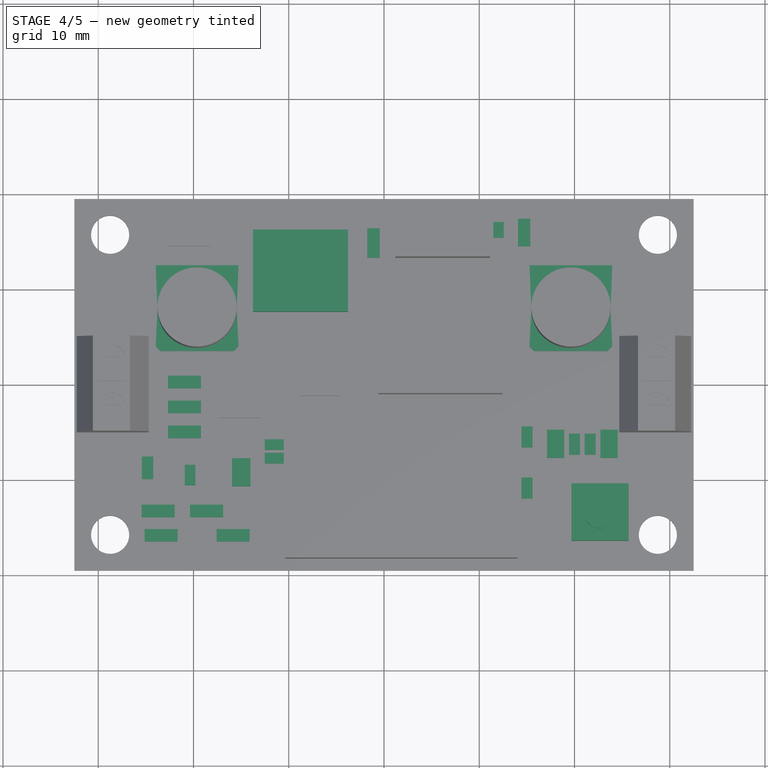
[diagram: stage 4 of 5 — top view after this stage's code; geometry added in this stage tinted green]
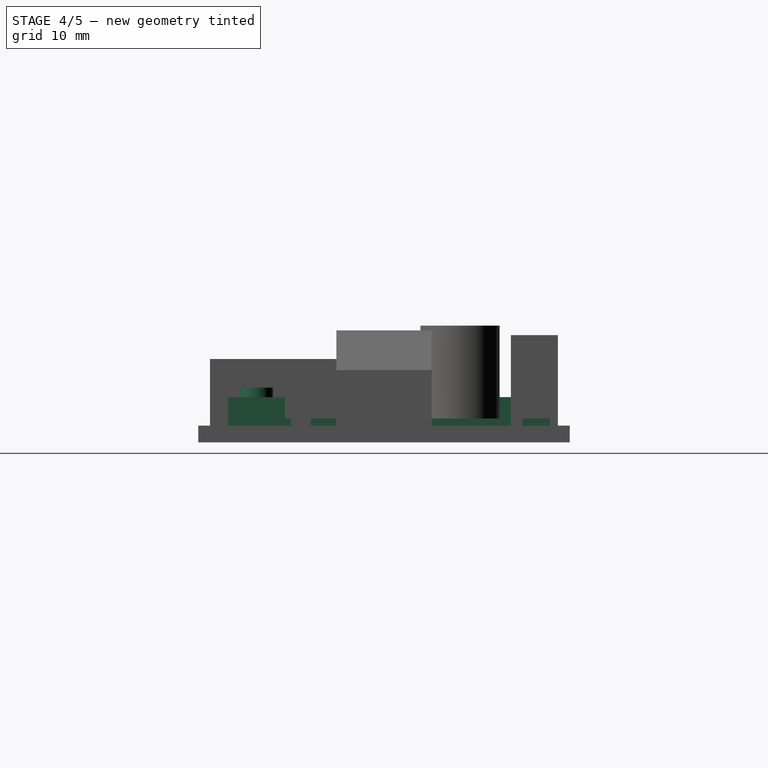
[diagram: stage 4 of 5 — right view after this stage's code; geometry added in this stage tinted green]
FEATURE [Sketcher::SketchObject] Sketch012
  ArcFitTolerance = 1e-06
  AttachmentSupport = -> [Pad006]
  FullyConstrained = true
  MakeInternals = false
  MapMode = 5
  Placement = pos=(0,0,1.75) rot=(0,0,1;0rad)
  sketch-geometry (4):
    g0: LineSegment StartX=-13.756 StartY=16.245 StartZ=0 EndX=-13.756 EndY=7.635 EndZ=0
    g1: LineSegment StartX=-13.756 StartY=7.635 StartZ=0 EndX=-3.773 EndY=7.635 EndZ=0
    g2: LineSegment StartX=-3.773 StartY=7.635 StartZ=0 EndX=-3.773 EndY=16.245 EndZ=0
    g3: LineSegment StartX=-3.773 StartY=16.245 StartZ=0 EndX=-13.756 EndY=16.245 EndZ=0
  constraints (12):
    c: Coincident(g0,g1)
    c: Coincident(g1,g2)
    c: Coincident(g2,g3)
    c: Coincident(g3,g0)
    c: Vertical(g0)
    c: Vertical(g2)
    c: Horizontal(g1)
    c: Horizontal(g3)
    c: DistanceY(g2,g2) = 8.61
    c: DistanceX(g3,g3) = 9.983
    c: DistanceX(g1,g-1) = 3.773
    c: DistanceY(g-1,g1) = 7.635
FEATURE [PartDesign::Pad] Pad007  label="Electronics2Pad"
  BaseFeature = -> Pad006
  Direction = (0,0,1)
  Length = 3
  Length2 = 10
  Profile = -> Sketch012
  ReferenceAxis = -> Sketch012 [N_Axis]
  Refine = true
  Suppressed = false
  Type = 0
FEATURE [Sketcher::SketchObject] Sketch013
  ArcFitTolerance = 1e-06
  AttachmentSupport = -> [Pad007]
  ExternalGeometry = -> [Pad007]
  FullyConstrained = false
  MakeInternals = false
  MapMode = 5
  Placement = pos=(0,0,1.75) rot=(0,0,1;0rad)
  sketch-geometry (105):
    g0: LineSegment StartX=-25.424 StartY=-7.543 StartZ=0 EndX=-25.424 EndY=-9.913 EndZ=0
    g1: LineSegment StartX=-25.424 StartY=-9.913 StartZ=0 EndX=-24.229 EndY=-9.913 EndZ=0
    g2: LineSegment StartX=-24.229 StartY=-9.913 StartZ=0 EndX=-24.229 EndY=-7.543 EndZ=0
    g3: LineSegment StartX=-24.229 StartY=-7.543 StartZ=0 EndX=-25.424 EndY=-7.543 EndZ=0
    g4: LineSegment StartX=-20.921 StartY=-8.419 StartZ=0 EndX=-20.921 EndY=-10.579 EndZ=0
    g5: LineSegment StartX=-20.921 StartY=-10.579 StartZ=0 EndX=-19.802 EndY=-10.579 EndZ=0
    g6: LineSegment StartX=-19.802 StartY=-10.579 StartZ=0 EndX=-19.802 EndY=-8.419 EndZ=0
    g7: LineSegment StartX=-19.802 StartY=-8.419 StartZ=0 EndX=-20.921 EndY=-8.419 EndZ=0
    g8: LineSegment StartX=-14.016 StartY=-7.72 StartZ=0 EndX=-14.016 EndY=-10.687 EndZ=0
    g9: LineSegment StartX=-14.016 StartY=-10.687 StartZ=0 EndX=-15.962 EndY=-10.687 EndZ=0
    g10: LineSegment StartX=-15.962 StartY=-10.687 StartZ=0 EndX=-15.962 EndY=-7.72 EndZ=0
    g11: LineSegment StartX=-15.962 StartY=-7.72 StartZ=0 EndX=-14.016 EndY=-7.72 EndZ=0
    g12: LineSegment StartX=-25.4485 StartY=-12.605 StartZ=0 EndX=-25.4485 EndY=-13.926 EndZ=0
    g13: LineSegment StartX=-25.4485 StartY=-13.926 StartZ=0 EndX=-21.9785 EndY=-13.926 EndZ=0
    g14: LineSegment StartX=-21.9785 StartY=-13.926 StartZ=0 EndX=-21.9785 EndY=-12.605 EndZ=0
    g15: LineSegment StartX=-21.9785 StartY=-12.605 StartZ=0 EndX=-25.4485 EndY=-12.605 EndZ=0
    g16: LineSegment StartX=-20.3615 StartY=-12.605 StartZ=0 EndX=-20.3615 EndY=-13.926 EndZ=0
    g17: LineSegment StartX=-20.3615 StartY=-13.926 StartZ=0 EndX=-16.8915 EndY=-13.926 EndZ=0
    g18: LineSegment StartX=-16.8915 StartY=-13.926 StartZ=0 EndX=-16.8915 EndY=-12.605 EndZ=0
    g19: LineSegment StartX=-16.8915 StartY=-12.605 StartZ=0 EndX=-20.3615 EndY=-12.605 EndZ=0
    g20: LineSegment StartX=-25.1345 StartY=-15.159 StartZ=0 EndX=-25.1345 EndY=-16.48 EndZ=0
    g21: LineSegment StartX=-25.1345 StartY=-16.48 StartZ=0 EndX=-21.6645 EndY=-16.48 EndZ=0
    g22: LineSegment StartX=-21.6645 StartY=-16.48 StartZ=0 EndX=-21.6645 EndY=-15.159 EndZ=0
    g23: LineSegment StartX=-21.6645 StartY=-15.159 StartZ=0 EndX=-25.1345 EndY=-15.159 EndZ=0
    g24: LineSegment StartX=-17.5725 StartY=-15.159 StartZ=0 EndX=-17.5725 EndY=-16.48 EndZ=0
    g25: LineSegment StartX=-17.5725 StartY=-16.48 StartZ=0 EndX=-14.1025 EndY=-16.48 EndZ=0
    g26: LineSegment StartX=-14.1025 StartY=-16.48 StartZ=0 EndX=-14.1025 EndY=-15.159 EndZ=0
    g27: LineSegment StartX=-14.1025 StartY=-15.159 StartZ=0 EndX=-17.5725 EndY=-15.159 EndZ=0
    g28: LineSegment StartX=14.441 StartY=-4.385 StartZ=0 EndX=14.441 EndY=-6.588 EndZ=0
    g29: LineSegment StartX=14.441 StartY=-6.588 StartZ=0 EndX=15.592 EndY=-6.588 EndZ=0
    g30: LineSegment StartX=15.592 StartY=-6.588 StartZ=0 EndX=15.592 EndY=-4.385 EndZ=0
    g31: LineSegment StartX=15.592 StartY=-4.385 StartZ=0 EndX=14.441 EndY=-4.385 EndZ=0
    g32: LineSegment StartX=14.441 StartY=-9.757 StartZ=0 EndX=14.441 EndY=-11.96 EndZ=0
    g33: LineSegment StartX=14.441 StartY=-11.96 StartZ=0 EndX=15.592 EndY=-11.96 EndZ=0
    g34: LineSegment StartX=15.592 StartY=-11.96 StartZ=0 EndX=15.592 EndY=-9.757 EndZ=0
    g35: LineSegment StartX=15.592 StartY=-9.757 StartZ=0 EndX=14.441 EndY=-9.757 EndZ=0
    g36: LineSegment StartX=17.108 StartY=-4.729 StartZ=0 EndX=17.108 EndY=-7.697 EndZ=0
    g37: LineSegment StartX=17.108 StartY=-7.697 StartZ=0 EndX=18.923 EndY=-7.697 EndZ=0
    g38: LineSegment StartX=18.923 StartY=-7.697 StartZ=0 EndX=18.923 EndY=-4.729 EndZ=0
    g39: LineSegment StartX=18.923 StartY=-4.729 StartZ=0 EndX=17.108 EndY=-4.729 EndZ=0
    g40: LineSegment StartX=19.42 StartY=-5.145 StartZ=0 EndX=19.42 EndY=-7.348 EndZ=0
    g41: LineSegment StartX=19.42 StartY=-7.348 StartZ=0 EndX=20.571 EndY=-7.348 EndZ=0
    g42: LineSegment StartX=20.571 StartY=-7.348 StartZ=0 EndX=20.571 EndY=-5.145 EndZ=0
    g43: LineSegment StartX=20.571 StartY=-5.145 StartZ=0 EndX=19.42 EndY=-5.145 EndZ=0
    g44: LineSegment StartX=21.068 StartY=-5.145 StartZ=0 EndX=21.068 EndY=-7.348 EndZ=0
    g45: LineSegment StartX=21.068 StartY=-7.348 StartZ=0 EndX=22.219 EndY=-7.348 EndZ=0
    g46: LineSegment StartX=22.219 StartY=-7.348 StartZ=0 EndX=22.219 EndY=-5.145 EndZ=0
    g47: LineSegment StartX=22.219 StartY=-5.145 StartZ=0 EndX=21.068 EndY=-5.145 EndZ=0
    g48: LineSegment StartX=22.716 StartY=-4.729 StartZ=0 EndX=22.716 EndY=-7.697 EndZ=0
    g49: LineSegment StartX=22.716 StartY=-7.697 StartZ=0 EndX=24.531 EndY=-7.697 EndZ=0
    g50: LineSegment StartX=24.531 StartY=-7.697 StartZ=0 EndX=24.531 EndY=-4.729 EndZ=0
    g51: LineSegment StartX=24.531 StartY=-4.729 StartZ=0 EndX=22.716 EndY=-4.729 EndZ=0
    g52: LineSegment StartX=-1.761 StartY=16.422 StartZ=0 EndX=-1.761 EndY=13.324 EndZ=0
    g53: LineSegment StartX=-1.761 StartY=13.324 StartZ=0 EndX=-0.44 EndY=13.324 EndZ=0
    g54: LineSegment StartX=-0.44 StartY=13.324 StartZ=0 EndX=-0.44 EndY=16.422 EndZ=0
    g55: LineSegment StartX=-0.44 StartY=16.422 StartZ=0 EndX=-1.761 EndY=16.422 EndZ=0
    g56: LineSegment StartX=11.486 StartY=17.067 StartZ=0 EndX=11.486 EndY=15.429 EndZ=0
    g57: LineSegment StartX=11.486 StartY=15.429 StartZ=0 EndX=12.577 EndY=15.429 EndZ=0
    g58: LineSegment StartX=12.577 StartY=15.429 StartZ=0 EndX=12.577 EndY=17.067 EndZ=0
    g59: LineSegment StartX=12.577 StartY=17.067 StartZ=0 EndX=11.486 EndY=17.067 EndZ=0
    g60: LineSegment StartX=14.073 StartY=17.423 StartZ=0 EndX=14.073 EndY=14.528 EndZ=0
    g61: LineSegment StartX=14.073 StartY=14.528 StartZ=0 EndX=15.354 EndY=14.528 EndZ=0
    g62: LineSegment StartX=15.354 StartY=14.528 StartZ=0 EndX=15.354 EndY=17.423 EndZ=0
    g63: LineSegment StartX=15.354 StartY=17.423 StartZ=0 EndX=14.073 EndY=17.423 EndZ=0
    g64: LineSegment StartX=-12.516 StartY=-5.7375 StartZ=0 EndX=-12.516 EndY=-6.8565 EndZ=0
    g65: LineSegment StartX=-12.516 StartY=-6.8565 StartZ=0 EndX=-10.521 EndY=-6.8565 EndZ=0
    g66: LineSegment StartX=-10.521 StartY=-6.8565 StartZ=0 EndX=-10.521 EndY=-5.7375 EndZ=0
    g67: LineSegment StartX=-10.521 StartY=-5.7375 StartZ=0 EndX=-12.516 EndY=-5.7375 EndZ=0
    g68: LineSegment StartX=-12.516 StartY=-7.1605 StartZ=0 EndX=-12.516 EndY=-8.2795 EndZ=0
    g69: LineSegment StartX=-12.516 StartY=-8.2795 StartZ=0 EndX=-10.521 EndY=-8.2795 EndZ=0
    g70: LineSegment StartX=-10.521 StartY=-8.2795 StartZ=0 EndX=-10.521 EndY=-7.1605 EndZ=0
    g71: LineSegment StartX=-10.521 StartY=-7.1605 StartZ=0 EndX=-12.516 EndY=-7.1605 EndZ=0
    g72: GeomPoint X=-20.3615 Y=-10.579 Z=0
    g73: LineSegment StartX=-22.682 StartY=0.942 StartZ=0 EndX=-22.682 EndY=-0.379 EndZ=0
    g74: LineSegment StartX=-22.682 StartY=-0.379 StartZ=0 EndX=-19.212 EndY=-0.379 EndZ=0
    g75: LineSegment StartX=-19.212 StartY=-0.379 StartZ=0 EndX=-19.212 EndY=0.942 EndZ=0
    g76: LineSegment StartX=-19.212 StartY=0.942 StartZ=0 EndX=-22.682 EndY=0.942 EndZ=0
    g77: LineSegment StartX=-22.682 StartY=-1.679 StartZ=0 EndX=-22.682 EndY=-3 EndZ=0
    g78: LineSegment StartX=-22.682 StartY=-3 StartZ=0 EndX=-19.212 EndY=-3 EndZ=0
    g79: LineSegment StartX=-19.212 StartY=-3 StartZ=0 EndX=-19.212 EndY=-1.679 EndZ=0
    g80: LineSegment StartX=-19.212 StartY=-1.679 StartZ=0 EndX=-22.682 EndY=-1.679 EndZ=0
    g81: LineSegment StartX=-22.682 StartY=-4.3 StartZ=0 EndX=-22.682 EndY=-5.621 EndZ=0
    g82: LineSegment StartX=-22.682 StartY=-5.621 StartZ=0 EndX=-19.212 EndY=-5.621 EndZ=0
    g83: LineSegment StartX=-19.212 StartY=-5.621 StartZ=0 EndX=-19.212 EndY=-4.3 EndZ=0
    g84: LineSegment StartX=-19.212 StartY=-4.3 StartZ=0 EndX=-22.682 EndY=-4.3 EndZ=0
    g85: LineSegment [constr] StartX=-19.212 StartY=-1.679 StartZ=0 EndX=-19.212 EndY=-0.379 EndZ=0
    g86: LineSegment [constr] StartX=-19.212 StartY=-3 StartZ=0 EndX=-19.212 EndY=-4.3 EndZ=0
    g87: LineSegment [constr] StartX=19.42 StartY=-5.145 StartZ=0 EndX=18.923 EndY=-5.145 EndZ=0
    g88: LineSegment [constr] StartX=20.571 StartY=-5.145 StartZ=0 EndX=21.068 EndY=-5.145 EndZ=0
    g89: LineSegment [constr] StartX=22.219 StartY=-5.145 StartZ=0 EndX=22.716 EndY=-5.145 EndZ=0
    g90: GeomPoint [constr] X=-12.516 Y=-7.72 Z=0
    g91: LineSegment StartX=-23.971 StartY=12.533 StartZ=0 EndX=-15.271 EndY=12.533 EndZ=0
    g92: LineSegment StartX=-15.271 StartY=12.533 StartZ=0 EndX=-15.271 EndY=4.033 EndZ=0
    g93: LineSegment StartX=-15.271 StartY=4.033 StartZ=0 EndX=-15.771 EndY=3.533 EndZ=0
    g94: LineSegment StartX=-15.771 StartY=3.533 StartZ=0 EndX=-23.471 EndY=3.533 EndZ=0
    g95: LineSegment StartX=-23.471 StartY=3.533 StartZ=0 EndX=-23.971 EndY=4.033 EndZ=0
    g96: LineSegment StartX=-23.971 StartY=4.033 StartZ=0 EndX=-23.971 EndY=12.533 EndZ=0
    g97: GeomPoint [constr] X=-19.621 Y=3.533 Z=0
    g98: LineSegment StartX=23.971 StartY=12.533 StartZ=0 EndX=15.271 EndY=12.533 EndZ=0
    g99: LineSegment StartX=15.271 StartY=12.533 StartZ=0 EndX=15.271 EndY=4.033 EndZ=0
    g100: LineSegment StartX=15.271 StartY=4.033 StartZ=0 EndX=15.771 EndY=3.533 EndZ=0
    g101: LineSegment StartX=15.771 StartY=3.533 StartZ=0 EndX=23.471 EndY=3.533 EndZ=0
    g102: LineSegment StartX=23.471 StartY=3.533 StartZ=0 EndX=23.971 EndY=4.033 EndZ=0
    g103: LineSegment StartX=23.971 StartY=4.033 StartZ=0 EndX=23.971 EndY=12.533 EndZ=0
    g104: GeomPoint [constr] X=19.621 Y=3.533 Z=0
  constraints (298):
    c: Coincident(g0,g1)
    c: Coincident(g1,g2)
    c: Coincident(g2,g3)
    c: Coincident(g3,g0)
    c: Vertical(g0)
    c: Vertical(g2)
    c: Horizontal(g1)
    c: Horizontal(g3)
    c: Coincident(g4,g5)
    c: Coincident(g5,g6)
    c: Coincident(g6,g7)
    c: Coincident(g7,g4)
    c: Vertical(g4)
    c: Vertical(g6)
    c: Horizontal(g5)
    c: Horizontal(g7)
    c: Coincident(g8,g9)
    c: Coincident(g9,g10)
    c: Coincident(g10,g11)
    c: Coincident(g11,g8)
    c: Vertical(g8)
    c: Vertical(g10)
    c: Horizontal(g9)
    c: Horizontal(g11)
    c: Coincident(g12,g13)
    c: Coincident(g13,g14)
    c: Coincident(g14,g15)
    c: Coincident(g15,g12)
    c: Vertical(g12)
    c: Vertical(g14)
    c: Horizontal(g13)
    c: Horizontal(g15)
    c: Coincident(g16,g17)
    c: Coincident(g17,g18)
    c: Coincident(g18,g19)
    c: Coincident(g19,g16)
    c: Vertical(g16)
    c: Vertical(g18)
    c: Horizontal(g17)
    c: Horizontal(g19)
    c: Coincident(g20,g21)
    c: Coincident(g21,g22)
    c: Coincident(g22,g23)
    c: Coincident(g23,g20)
    c: Vertical(g20)
    c: Vertical(g22)
    c: Horizontal(g21)
    c: Horizontal(g23)
    c: Coincident(g24,g25)
    c: Coincident(g25,g26)
    c: Coincident(g26,g27)
    c: Coincident(g27,g24)
    c: Vertical(g24)
    c: Vertical(g26)
    c: Horizontal(g25)
    c: Horizontal(g27)
    c: Coincident(g28,g29)
    c: Coincident(g29,g30)
    c: Coincident(g30,g31)
    c: Coincident(g31,g28)
    c: Vertical(g28)
    c: Vertical(g30)
    c: Horizontal(g29)
    c: Horizontal(g31)
    c: Coincident(g32,g33)
    c: Coincident(g33,g34)
    c: Coincident(g34,g35)
    c: Coincident(g35,g32)
    c: Vertical(g32)
    c: Vertical(g34)
    c: Horizontal(g33)
    c: Horizontal(g35)
    c: Coincident(g36,g37)
    c: Coincident(g37,g38)
    c: Coincident(g38,g39)
    c: Coincident(g39,g36)
    c: Vertical(g36)
    c: Vertical(g38)
    c: Horizontal(g37)
    c: Horizontal(g39)
    c: Coincident(g40,g41)
    c: Coincident(g41,g42)
    c: Coincident(g42,g43)
    c: Coincident(g43,g40)
    c: Vertical(g40)
    c: Vertical(g42)
    c: Horizontal(g41)
    c: Horizontal(g43)
    c: Coincident(g44,g45)
    c: Coincident(g45,g46)
    c: Coincident(g46,g47)
    c: Coincident(g47,g44)
    c: Vertical(g44)
    c: Vertical(g46)
    c: Horizontal(g45)
    c: Horizontal(g47)
    c: Coincident(g48,g49)
    c: Coincident(g49,g50)
    c: Coincident(g50,g51)
    c: Coincident(g51,g48)
    c: Vertical(g48)
    c: Vertical(g50)
    c: Horizontal(g49)
    c: Horizontal(g51)
    c: Coincident(g52,g53)
    c: Coincident(g53,g54)
    c: Coincident(g54,g55)
    c: Coincident(g55,g52)
    c: Vertical(g52)
    c: Vertical(g54)
    c: Horizontal(g53)
    c: Horizontal(g55)
    c: Coincident(g56,g57)
    c: Coincident(g57,g58)
    c: Coincident(g58,g59)
    c: Coincident(g59,g56)
    c: Vertical(g56)
    c: Vertical(g58)
    c: Horizontal(g57)
    c: Horizontal(g59)
    c: Coincident(g60,g61)
    c: Coincident(g61,g62)
    c: Coincident(g62,g63)
    c: Coincident(g63,g60)
    c: Vertical(g60)
    c: Vertical(g62)
    c: Horizontal(g61)
    c: Horizontal(g63)
    c: Coincident(g64,g65)
    c: Coincident(g65,g66)
    c: Coincident(g66,g67)
    c: Coincident(g67,g64)
    c: Vertical(g64)
    c: Vertical(g66)
    c: Horizontal(g65)
    c: Horizontal(g67)
    c: Coincident(g68,g69)
    c: Coincident(g69,g70)
    c: Coincident(g70,g71)
    c: Coincident(g71,g68)
    c: Vertical(g68)
    c: Vertical(g70)
    c: Horizontal(g69)
    c: Horizontal(g71)
    c: Horizontal(g22,g24)
    c: Horizontal(g16,g14)
    c: Equal(g13,g17)
    c: Equal(g25,g21)
    c: Equal(g21,g13)
    c: Equal(g22,g24)
    c: Equal(g24,g18)
    c: Equal(g14,g16)
    c: DistanceX(g19,g19) = 3.47
    c: DistanceY(g18,g18) = 1.321
    c: DistanceX(g13,g22) = 0.314
    c: DistanceY(g20,g12) = 1.233
    c: DistanceX(g21,g24) = 4.092
    c: DistanceX(g14,g16) = 1.617
    c: Symmetric(g5,g5,g72)
    c: Vertical(g72,g16)
    c: Coincident(g73,g74)
    c: Coincident(g74,g75)
    c: Coincident(g75,g76)
    c: Coincident(g76,g73)
    c: Vertical(g73)
    c: Vertical(g75)
    c: Horizontal(g74)
    c: Horizontal(g76)
    c: Coincident(g77,g78)
    c: Coincident(g78,g79)
    c: Coincident(g79,g80)
    c: Coincident(g80,g77)
    c: Vertical(g77)
    c: Vertical(g79)
    c: Horizontal(g78)
    c: Horizontal(g80)
    c: Coincident(g81,g82)
    c: Coincident(g82,g83)
    c: Coincident(g83,g84)
    c: Coincident(g84,g81)
    c: Vertical(g81)
    c: Vertical(g83)
    c: Horizontal(g82)
    c: Horizontal(g84)
    c: Vertical(g83,g78)
    c: Vertical(g74,g79)
    c: Equal(g79,g83)
    c: Equal(g83,g75)
    c: Equal(g75,g14)
    c: Equal(g17,g82)
    c: Equal(g82,g78)
    c: Equal(g78,g74)
    c: DistanceY(g6,g6) = 2.16
    c: DistanceX(g7,g7) = 1.119
    c: DistanceX(g1,g4) = 3.308
    c: DistanceY(g4,g2) = 0.876
    c: DistanceX(g1,g1) = 1.195
    c: DistanceY(g0,g0) = 2.37
    c: DistanceY(g8,g8) = 2.967
    c: Equal(g7,g68)
    c: Equal(g64,g7)
    c: Vertical(g68,g64)
    c: DistanceX(g9,g9) = 1.946
    c: DistanceX(g5,g9) = 3.84
    c: DistanceY(g6,g10) = 0.699
    c: DistanceY(g16,g4) = 2.026
    c: DistanceY(g75) = 0.942
    c: DistanceX(g75) = -19.212
    c: Coincident(g85,g79)
    c: Coincident(g85,g74)
    c: Coincident(g86,g78)
    c: Coincident(g86,g83)
    c: Equal(g86,g85)
    c: DistanceY(g85,g85) = 1.3
    c: Equal(g53,g75)
    c: DistanceY(g52,g52) = 3.098
    c: DistanceX(g53) = -0.44
    c: DistanceY(g53) = 13.324
    c: DistanceX(g54,g56) = 11.926
    c: DistanceY(g56,g56) = 1.638
    c: DistanceX(g57,g57) = 1.091
    c: DistanceY(g54,g56) = 0.645
    c: DistanceY(g58,g60) = 0.356
    c: DistanceX(g58,g60) = 1.496
    c: DistanceX(g61,g61) = 1.281
    c: DistanceY(g62,g62) = 2.895
    c: Equal(g30,g34)
    c: Equal(g34,g40)
    c: Equal(g40,g44)
    c: Horizontal(g42,g44)
    c: Horizontal(g38,g48)
    c: Equal(g48,g38)
    c: Equal(g39,g51)
    c: Equal(g31,g35)
    c: Equal(g35,g43)
    c: Equal(g43,g47)
    c: Coincident(g87,g40)
    c: PointOnObject(g87,g38)
    c: Horizontal(g87)
    c: Coincident(g88,g42)
    c: Coincident(g88,g44)
    c: Coincident(g89,g46)
    c: PointOnObject(g89,g48)
    c: Horizontal(g89)
    c: Equal(g87,g88)
    c: Equal(g88,g89)
    c: DistanceX(g89,g89) = 0.497
    c: DistanceX(g30,g36) = 1.516
    c: Vertical(g29,g34)
    c: DistanceY(g34,g29) = 3.169
    c: DistanceY(g50,g50) = 2.968
    c: DistanceX(g51,g51) = 1.815
    c: DistanceY(g28,g28) = 2.203
    c: DistanceX(g31,g31) = 1.151
    c: DistanceX(g28) = 14.441
    c: DistanceY(g28) = -4.385
    c: DistanceY(g36,g30) = 0.344
    c: DistanceY(g40,g38) = 0.416
    c: Equal(g69,g65)
    c: DistanceY(g70,g65) = 0.304
    c: DistanceX(g69,g69) = 1.995
    c: Symmetric(g68,g68,g90)
    c: Horizontal(g8,g90)
    c: DistanceX(g82,g10) = 3.25
    c: DistanceY(g10,g82) = 2.099
    c: DistanceX(g8,g64) = 1.5
    c: Horizontal(g91)
    c: Coincident(g91,g92)
    c: Coincident(g92,g93)
    c: Coincident(g93,g94)
    c: Coincident(g94,g95)
    c: Coincident(g95,g96)
    c: Coincident(g96,g91)
    c: Vertical(g92)
    c: Vertical(g96)
    c: Horizontal(g94)
    c: Symmetric(g94,g94,g97)
    c: Equal(g95,g93)
    c: Angle(g93,g94) = 2.35619
    c: Horizontal(g95,g92)
    c: Vertical(g97,g-3)
    c: DistanceY(g93,g91) = 9
    c: DistanceX(g91,g91) = 8.7
    c: DistanceX(g93,g92) = 0.5
    c: DistanceY(g92,g-3) = 3.955
    c: Horizontal(g98)
    c: Coincident(g98,g99)
    c: Coincident(g99,g100)
    c: Coincident(g100,g101)
    c: Coincident(g101,g102)
    c: Coincident(g102,g103)
    c: Coincident(g103,g98)
    c: Vertical(g99)
    c: Vertical(g103)
    c: Horizontal(g101)
    c: Symmetric(g101,g101,g104)
    c: Equal(g102,g100)
    c: Angle(g100,g101) = -2.35619
FEATURE [PartDesign::Pad] Pad008  label="Electronics3Pad"
  BaseFeature = -> Pad007
  Direction = (0,0,1)
  Length = 0.75
  Length2 = 10
  Profile = -> Sketch013
  ReferenceAxis = -> Sketch013 [N_Axis]
  Refine = true
  Suppressed = false
  Type = 0
FEATURE [Sketcher::SketchObject] Sketch014
  ArcFitTolerance = 1e-06
  AttachmentSupport = -> [Pad008]
  FullyConstrained = true
  MakeInternals = false
  MapMode = 5
  Placement = pos=(0,0,1.75) rot=(0,0,1;0rad)
  sketch-geometry (4):
    g0: LineSegment StartX=19.686 StartY=-10.396 StartZ=0 EndX=19.686 EndY=-16.396 EndZ=0
    g1: LineSegment StartX=19.686 StartY=-16.396 StartZ=0 EndX=25.686 EndY=-16.396 EndZ=0
    g2: LineSegment StartX=25.686 StartY=-16.396 StartZ=0 EndX=25.686 EndY=-10.396 EndZ=0
    g3: LineSegment StartX=25.686 StartY=-10.396 StartZ=0 EndX=19.686 EndY=-10.396 EndZ=0
  constraints (12):
    c: Coincident(g0,g1)
    c: Coincident(g1,g2)
    c: Coincident(g2,g3)
    c: Coincident(g3,g0)
    c: Vertical(g0)
    c: Vertical(g2)
    c: Horizontal(g1)
    c: Horizontal(g3)
    c: Equal(g2,g3)
    c: DistanceY(g2,g2) = 6
    c: DistanceX(g0) = 19.686
    c: DistanceY(g0) = -10.396
FEATURE [PartDesign::Pad] Pad009  label="SwitchPad"
  BaseFeature = -> Pad008
  Direction = (0,0,1)
  Length = 3
  Length2 = 10
  Profile = -> Sketch014
  ReferenceAxis = -> Sketch014 [N_Axis]
  Refine = true
  Suppressed = false
  Type = 0
FEATURE [Sketcher::SketchObject] Sketch015
  ArcFitTolerance = 1e-06
  AttachmentSupport = -> [Pad009]
  ExternalGeometry = -> [Pad009]
  FullyConstrained = true
  MakeInternals = false
  MapMode = 5
  Placement = pos=(0,0,4.75) rot=(0,0,1;0rad)
  sketch-geometry (3):
    g0: Circle CenterX=22.686 CenterY=-13.396 CenterZ=0 NormalX=0 NormalY=0 NormalZ=1 AngleXU=0 Radius=1.75
    g1: GeomPoint X=22.686 Y=-10.396 Z=0
    g2: GeomPoint X=19.686 Y=-13.396 Z=0
  constraints (5):
    c: Symmetric(g-3,g-3,g1)
    c: Symmetric(g-4,g-4,g2)
    c: Horizontal(g2,g0)
    c: Vertical(g0,g1)
    c: Radius(g0) = 1.75
FEATURE [PartDesign::Pad] Pad010  label="ButtonPad"
  BaseFeature = -> Pad009
  Direction = (0,0,1)
  Length = 1
  Length2 = 10
  Profile = -> Sketch015
  ReferenceAxis = -> Sketch015 [N_Axis]
  Refine = true
  Suppressed = false
  Type = 0
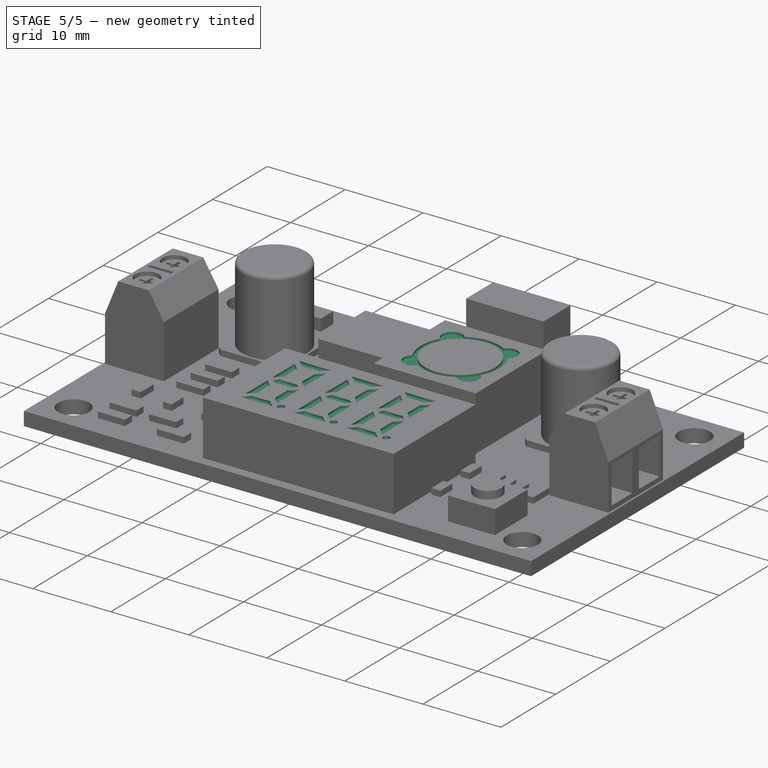
[diagram: stage 5 of 5 — iso view after this stage's code; geometry added in this stage tinted green]
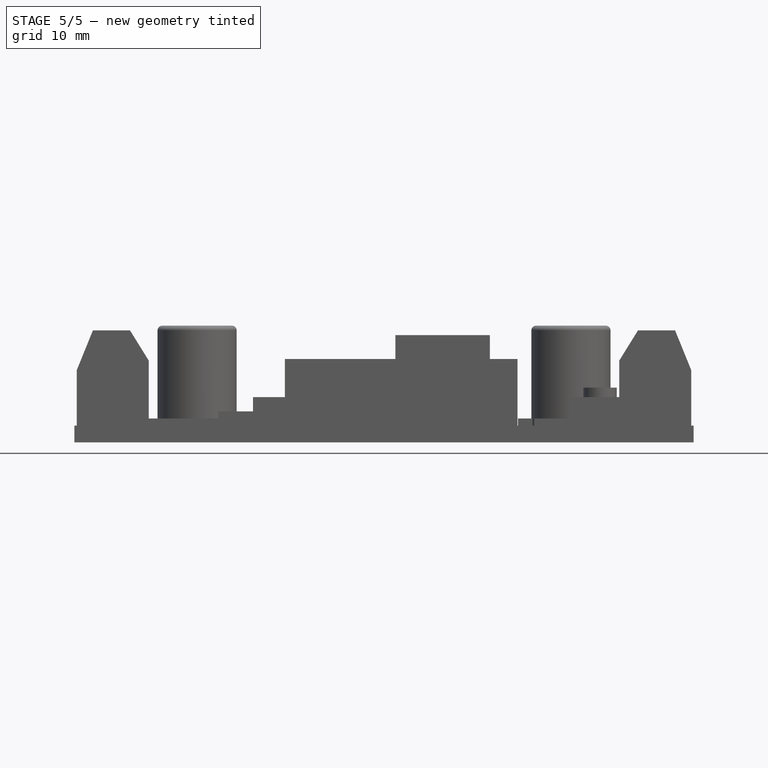
[diagram: stage 5 of 5 — front view after this stage's code; geometry added in this stage tinted green]
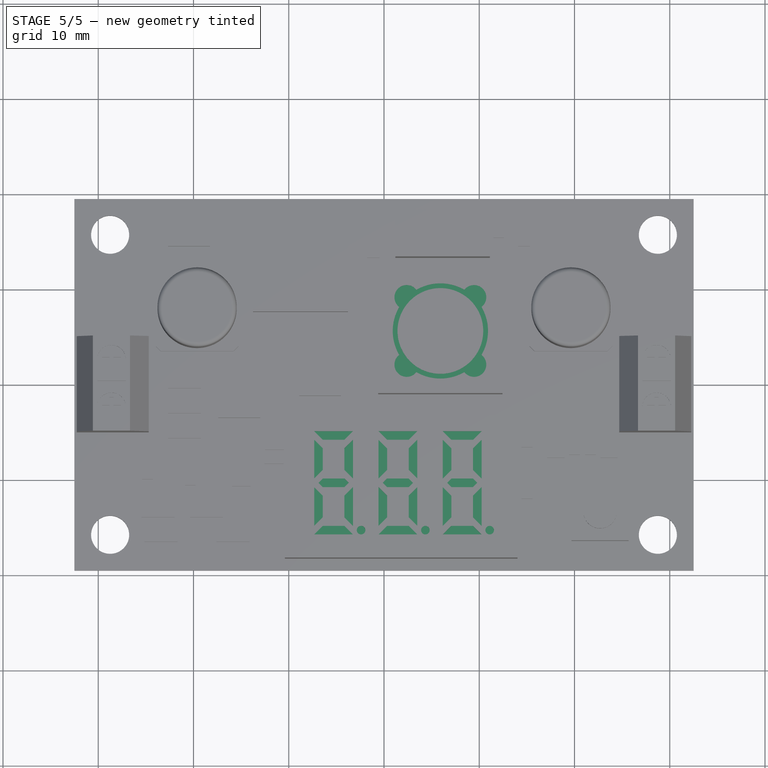
[diagram: stage 5 of 5 — top view after this stage's code; geometry added in this stage tinted green]
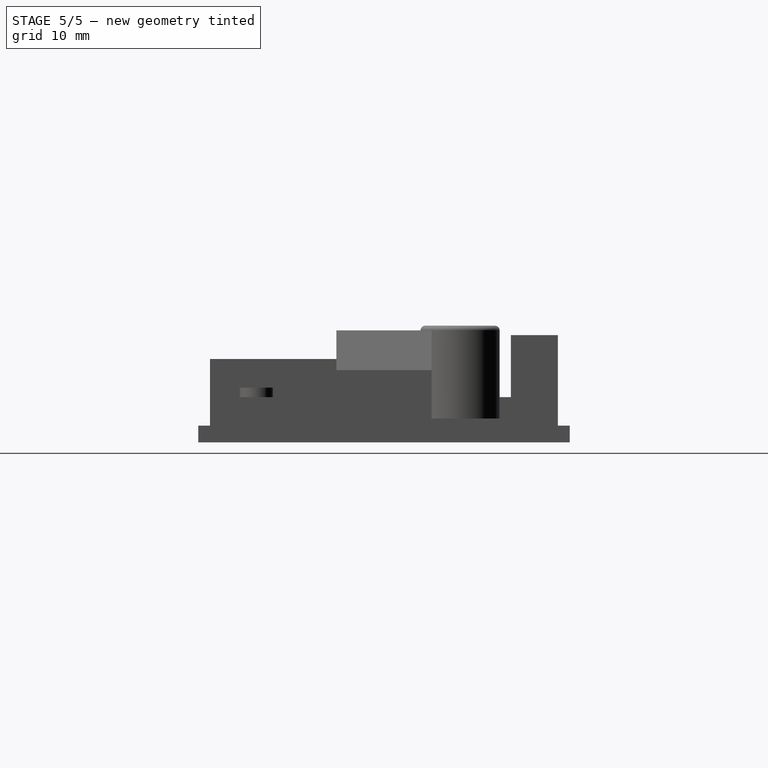
[diagram: stage 5 of 5 — right view after this stage's code; geometry added in this stage tinted green]
FEATURE [PartDesign::Fillet] Fillet  label="CapacitorPad"
  Base = -> Pad010 [Edge523,Edge537]
  BaseFeature = -> Pad010
  Radius = 0.5
  Refine = true
  SupportTransform = false
  Suppressed = false
  UseAllEdges = false
FEATURE [Sketcher::SketchObject] Sketch016
  ArcFitTolerance = 1e-06
  AttachmentSupport = -> [Fillet]
  ExternalGeometry = -> [Fillet]
  FullyConstrained = true
  MakeInternals = false
  MapMode = 5
  Placement = pos=(0,0,8.75) rot=(0,0,1;0rad)
  sketch-geometry (14):
    g0: Circle CenterX=5.917 CenterY=5.524 CenterZ=0 NormalX=0 NormalY=0 NormalZ=1 AngleXU=0 Radius=4.5
    g1: Circle [constr] CenterX=5.917 CenterY=5.524 CenterZ=0 NormalX=0 NormalY=0 NormalZ=1 AngleXU=0 Radius=5
    g2: ArcOfCircle CenterX=2.38147 CenterY=9.05953 CenterZ=0 NormalX=0 NormalY=0 NormalZ=1 AngleXU=0 Radius=1.285 StartAngle=0.656542 EndAngle=4.05585
    g3: ArcOfCircle CenterX=9.45253 CenterY=9.05953 CenterZ=0 NormalX=0 NormalY=0 NormalZ=1 AngleXU=0 Radius=1.285 StartAngle=5.36893 EndAngle=8.76824
    g4: ArcOfCircle CenterX=2.38147 CenterY=1.98847 CenterZ=0 NormalX=0 NormalY=0 NormalZ=1 AngleXU=0 Radius=1.285 StartAngle=2.22734 EndAngle=5.62664
    g5: ArcOfCircle CenterX=9.45253 CenterY=1.98847 CenterZ=0 NormalX=0 NormalY=0 NormalZ=1 AngleXU=0 Radius=1.285 StartAngle=3.79813 EndAngle=7.19744
    g6: ArcOfCircle CenterX=5.917 CenterY=5.524 CenterZ=0 NormalX=0 NormalY=0 NormalZ=1 AngleXU=0 Radius=5 StartAngle=4.1847 EndAngle=5.24007
    g7: ArcOfCircle CenterX=5.917 CenterY=5.524 CenterZ=0 NormalX=0 NormalY=0 NormalZ=1 AngleXU=0 Radius=5 StartAngle=5.7555 EndAngle=6.81087
    g8: ArcOfCircle CenterX=5.917 CenterY=5.524 CenterZ=0 NormalX=0 NormalY=0 NormalZ=1 AngleXU=0 Radius=5 StartAngle=1.04311 EndAngle=2.09848
    g9: ArcOfCircle CenterX=5.917 CenterY=5.524 CenterZ=0 NormalX=0 NormalY=0 NormalZ=1 AngleXU=0 Radius=5 StartAngle=2.61391 EndAngle=3.66928
    g10: GeomPoint X=5.917 Y=-1.005 Z=0
    g11: GeomPoint X=12.446 Y=5.524 Z=0
    g12: LineSegment [constr] StartX=8.43468 StartY=1.20413 StartZ=0 EndX=8.43468 EndY=9.84387 EndZ=0
    g13: LineSegment [constr] StartX=1.59713 StartY=8.04168 StartZ=0 EndX=10.2369 EndY=8.04168 EndZ=0
  constraints (39):
    c: Coincident(g1,g0)
    c: PointOnObject(g2,g1)
    c: PointOnObject(g2,g1)
    c: PointOnObject(g3,g1)
    c: PointOnObject(g3,g1)
    c: PointOnObject(g4,g1)
    c: PointOnObject(g4,g1)
    c: PointOnObject(g4,g1)
    c: PointOnObject(g5,g1)
    c: Coincident(g6,g0)
    c: Coincident(g6,g4)
    c: Coincident(g6,g5)
    c: Coincident(g7,g0)
    c: Coincident(g7,g3)
    c: Coincident(g8,g0)
    c: Coincident(g8,g3)
    c: Coincident(g8,g2)
    c: Coincident(g9,g0)
    c: Coincident(g9,g4)
    c: Coincident(g7,g5)
    c: Coincident(g2,g9)
    c: Vertical(g2,g4)
    c: Vertical(g3,g5)
    c: Horizontal(g5,g4)
    c: Equal(g3,g5)
    c: Equal(g5,g4)
    c: Equal(g4,g2)
    c: Radius(g0) = 4.5
    c: Radius(g8) = 5
    c: Radius(g5) = 1.285
    c: Symmetric(g-4,g-4,g10)
    c: Symmetric(g-3,g-3,g11)
    c: Horizontal(g11,g0)
    c: Vertical(g0,g10)
    c: Coincident(g12,g5)
    c: Coincident(g12,g3)
    c: Coincident(g13,g2)
    c: Coincident(g13,g3)
    c: Equal(g12,g13)
FEATURE [PartDesign::Pocket] Pocket005  label="470Pocket"
  BaseFeature = -> Fillet
  Direction = (0,0,-1)
  Length = 0.25
  Length2 = 5
  Profile = -> Sketch016
  ReferenceAxis = -> Sketch016 [N_Axis]
  Refine = true
  Suppressed = false
  Type = 0
FEATURE [Sketcher::SketchObject] Sketch017
  ArcFitTolerance = 1e-06
  AttachmentSupport = -> [Pocket005]
  FullyConstrained = true
  MakeInternals = false
  MapMode = 5
  Placement = pos=(0,0,8.75) rot=(0,0,1;0rad)
  sketch-geometry (42):
    g0: LineSegment StartX=-7.327 StartY=-5.9 StartZ=0 EndX=-7.327 EndY=-9.97 EndZ=0
    g1: LineSegment StartX=-7.327 StartY=-9.97 StartZ=0 EndX=-6.427 EndY=-9.07 EndZ=0
    g2: LineSegment StartX=-6.427 StartY=-9.07 StartZ=0 EndX=-6.427 EndY=-6.8 EndZ=0
    g3: LineSegment StartX=-6.427 StartY=-6.8 StartZ=0 EndX=-7.327 EndY=-5.9 EndZ=0
    g4: LineSegment StartX=-7.327 StartY=-5 StartZ=0 EndX=-6.427 EndY=-5.9 EndZ=0
    g5: LineSegment StartX=-6.427 StartY=-5.9 StartZ=0 EndX=-4.157 EndY=-5.9 EndZ=0
    g6: LineSegment StartX=-4.157 StartY=-5.9 StartZ=0 EndX=-3.257 EndY=-5 EndZ=0
    g7: LineSegment StartX=-3.257 StartY=-5 StartZ=0 EndX=-7.327 EndY=-5 EndZ=0
    g8: LineSegment StartX=-3.257 StartY=-5.9 StartZ=0 EndX=-4.157 EndY=-6.8 EndZ=0
    g9: LineSegment StartX=-4.157 StartY=-6.8 StartZ=0 EndX=-4.157 EndY=-9.07 EndZ=0
    g10: LineSegment StartX=-4.157 StartY=-9.07 StartZ=0 EndX=-3.257 EndY=-9.97 EndZ=0
    g11: LineSegment StartX=-3.257 StartY=-9.97 StartZ=0 EndX=-3.257 EndY=-5.9 EndZ=0
    g12: LineSegment StartX=-6.877 StartY=-10.42 StartZ=0 EndX=-6.427 EndY=-9.97 EndZ=0
    g13: LineSegment StartX=-6.427 StartY=-9.97 StartZ=0 EndX=-4.157 EndY=-9.97 EndZ=0
    g14: LineSegment StartX=-4.157 StartY=-9.97 StartZ=0 EndX=-3.707 EndY=-10.42 EndZ=0
    g15: LineSegment StartX=-3.707 StartY=-10.42 StartZ=0 EndX=-4.157 EndY=-10.87 EndZ=0
    g16: LineSegment StartX=-4.157 StartY=-10.87 StartZ=0 EndX=-6.427 EndY=-10.87 EndZ=0
    g17: LineSegment StartX=-6.427 StartY=-10.87 StartZ=0 EndX=-6.877 EndY=-10.42 EndZ=0
    g18: LineSegment StartX=-7.327 StartY=-10.87 StartZ=0 EndX=-7.327 EndY=-14.94 EndZ=0
    g19: LineSegment StartX=-7.327 StartY=-14.94 StartZ=0 EndX=-6.427 EndY=-14.04 EndZ=0
    g20: LineSegment StartX=-6.427 StartY=-14.04 StartZ=0 EndX=-6.427 EndY=-11.77 EndZ=0
    g21: LineSegment StartX=-6.427 StartY=-11.77 StartZ=0 EndX=-7.327 EndY=-10.87 EndZ=0
    g22: LineSegment StartX=-7.327 StartY=-15.84 StartZ=0 EndX=-6.427 EndY=-14.94 EndZ=0
    g23: LineSegment StartX=-6.427 StartY=-14.94 StartZ=0 EndX=-4.157 EndY=-14.94 EndZ=0
    g24: LineSegment StartX=-4.157 StartY=-14.94 StartZ=0 EndX=-3.257 EndY=-15.84 EndZ=0
    g25: LineSegment StartX=-3.257 StartY=-15.84 StartZ=0 EndX=-7.327 EndY=-15.84 EndZ=0
    g26: LineSegment StartX=-4.157 StartY=-11.77 StartZ=0 EndX=-4.157 EndY=-14.04 EndZ=0
    g27: LineSegment StartX=-4.157 StartY=-14.04 StartZ=0 EndX=-3.257 EndY=-14.94 EndZ=0
    g28: LineSegment StartX=-3.257 StartY=-14.94 StartZ=0 EndX=-3.257 EndY=-10.87 EndZ=0
    g29: LineSegment StartX=-3.257 StartY=-10.87 StartZ=0 EndX=-4.157 EndY=-11.77 EndZ=0
    g30: LineSegment [constr] StartX=-4.157 StartY=-5.9 StartZ=0 EndX=-4.157 EndY=-5 EndZ=0
    g31: LineSegment [constr] StartX=-4.157 StartY=-6.8 StartZ=0 EndX=-3.257 EndY=-6.8 EndZ=0
    g32: LineSegment [constr] StartX=-6.427 StartY=-6.8 StartZ=0 EndX=-7.327 EndY=-6.8 EndZ=0
    g33: LineSegment [constr] StartX=-6.427 StartY=-5.9 StartZ=0 EndX=-6.427 EndY=-6.8 EndZ=0
    g34: LineSegment [constr] StartX=-6.427 StartY=-9.07 StartZ=0 EndX=-6.427 EndY=-9.97 EndZ=0
    g35: LineSegment [constr] StartX=-6.427 StartY=-10.87 StartZ=0 EndX=-6.427 EndY=-11.77 EndZ=0
    g36: LineSegment [constr] StartX=-6.427 StartY=-14.04 StartZ=0 EndX=-6.427 EndY=-14.94 EndZ=0
    g37: LineSegment [constr] StartX=-4.157 StartY=-14.94 StartZ=0 EndX=-4.157 EndY=-15.84 EndZ=0
    g38: LineSegment [constr] StartX=-4.157 StartY=-10.87 StartZ=0 EndX=-4.157 EndY=-9.97 EndZ=0
    g39: LineSegment [constr] StartX=-3.257 StartY=-9.97 StartZ=0 EndX=-3.257 EndY=-10.87 EndZ=0
    g40: Circle CenterX=-2.407 CenterY=-15.39 CenterZ=0 NormalX=0 NormalY=0 NormalZ=1 AngleXU=0 Radius=0.45
    g41: GeomPoint [constr] X=-4.157 Y=-15.39 Z=0
  constraints (118):
    c: Vertical(g0)
    c: Coincident(g0,g1)
    c: Coincident(g1,g2)
    c: Vertical(g2)
    c: Coincident(g2,g3)
    c: Coincident(g3,g0)
    c: Coincident(g4,g5)
    c: Horizontal(g5)
    c: Coincident(g5,g6)
    c: Coincident(g6,g7)
    c: Coincident(g7,g4)
    c: Horizontal(g7)
    c: Coincident(g8,g9)
    c: Vertical(g9)
    c: Coincident(g9,g10)
    c: Coincident(g10,g11)
    c: Coincident(g11,g8)
    c: Coincident(g12,g13)
    c: Horizontal(g13)
    c: Coincident(g13,g14)
    c: Coincident(g14,g15)
    c: Coincident(g15,g16)
    c: Horizontal(g16)
    c: Coincident(g16,g17)
    c: Coincident(g17,g12)
    c: Coincident(g18,g19)
    c: Coincident(g19,g20)
    c: Vertical(g20)
    c: Coincident(g20,g21)
    c: Coincident(g21,g18)
    c: Coincident(g22,g23)
    c: Horizontal(g23)
    c: Coincident(g23,g24)
    c: Coincident(g24,g25)
    c: Coincident(g25,g22)
    c: Horizontal(g25)
    c: Coincident(g26,g27)
    c: Coincident(g27,g28)
    c: Coincident(g28,g29)
    c: Coincident(g29,g26)
    c: Vertical(g18)
    c: Vertical(g0,g18)
    c: Parallel(g19,g22)
    c: Parallel(g24,g27)
    c: Parallel(g29,g15)
    c: Parallel(g17,g21)
    c: Parallel(g1,g12)
    c: Parallel(g14,g10)
    c: Parallel(g3,g4)
    c: Parallel(g8,g6)
    c: Vertical(g4,g0)
    c: Vertical(g4,g2)
    c: Vertical(g8,g5)
    c: Vertical(g8,g6)
    c: Vertical(g28)
    c: Vertical(g10,g28)
    c: Angle(g15,g16) = 2.35619
    c: Angle(g13,g14) = 2.35619
    c: Equal(g12,g14)
    c: Equal(g14,g17)
    c: Equal(g17,g15)
    c: Vertical(g9,g13)
    c: Vertical(g1,g12)
    c: Vertical(g20,g16)
    c: Angle(g25,g22) = 0.785398
    c: Vertical(g26)
    c: Equal(g20,g26)
    c: Equal(g9,g2)
    c: Vertical(g11)
    c: Coincident(g30,g5)
    c: PointOnObject(g30,g7)
    c: Vertical(g30)
    c: Coincident(g31,g8)
    c: PointOnObject(g31,g11)
    c: Horizontal(g31)
    c: Coincident(g32,g2)
    c: PointOnObject(g32,g0)
    c: Horizontal(g32)
    c: Equal(g32,g30)
    c: Equal(g30,g31)
    c: Vertical(g16,g12)
    c: Vertical(g26,g9)
    c: DistanceY(g6,g-1) = 5
    c: DistanceX(g6) = -3.257
    c: Coincident(g33,g4)
    c: Coincident(g33,g2)
    c: Coincident(g34,g1)
    c: Coincident(g34,g12)
    c: Coincident(g35,g16)
    c: Coincident(g35,g20)
    c: Vertical(g23,g26)
    c: Vertical(g22,g19)
    c: Coincident(g36,g19)
    c: Coincident(g36,g22)
    c: Equal(g36,g35)
    c: Equal(g35,g34)
    c: Equal(g34,g33)
    c: DistanceX(g31,g31) = 0.9
    c: Coincident(g37,g23)
    c: PointOnObject(g37,g25)
    c: Vertical(g37)
    c: Coincident(g38,g15)
    c: Coincident(g38,g13)
    c: Horizontal(g9,g1)
    c: Coincident(g39,g10)
    c: Coincident(g39,g28)
    c: Equal(g39,g31)
    c: Vertical(g22,g18)
    c: Vertical(g24,g27)
    c: Horizontal(g27,g18)
    c: Horizontal(g13,g10)
    c: Equal(g7,g0)
    c: Equal(g0,g18)
    c: DistanceX(g25,g25) = 4.07
    c: Symmetric(g37,g37,g41)
    c: Horizontal(g41,g40)
    c: Tangent(g40,g23)
    c: DistanceX(g41,g40) = 1.75
FEATURE [PartDesign::Pocket] Pocket006  label="DispPocket"
  BaseFeature = -> Pocket005
  Direction = (0,0,-1)
  Length = 0.25
  Length2 = 5
  Profile = -> Sketch017
  ReferenceAxis = -> Sketch017 [N_Axis]
  Refine = true
  Suppressed = false
  Type = 0
FEATURE [PartDesign::LinearPattern] LinearPattern  label="DispPattern"
  BaseFeature = -> Pocket006
  Direction = -> Sketch017 [H_Axis]
  Length = 13.5
  Mode = 0
  Occurrences = 3
  Offset = 6.75
  Originals = -> [Pocket006]
  Refine = true
  Suppressed = false
  TransformMode = 0
FEATURE [PartDesign::Body] Body  label="Regulator"
  AllowCompound = false
  Group = -> [Sketch,Pad,Sketch001,Pocket,Sketch002,Pad001,Sketch003,Pad002,Sketch004,Pad003,Sketch005,Pad004,Sketch006,Pad005,Sketch007,Pocket001,Sketch008,Pocket002,Sketch009,Pocket003,Sketch010,Pocket004,Mirrored,Sketch011,Pad006,Sketch012,Pad007,Sketch013,Pad008,Sketch014,Pad009,Sketch015,Pad010,Fillet,Sketch016,Pocket005,Sketch017,Pocket006,LinearPattern]
  Origin = -> Origin
  Tip = -> LinearPattern
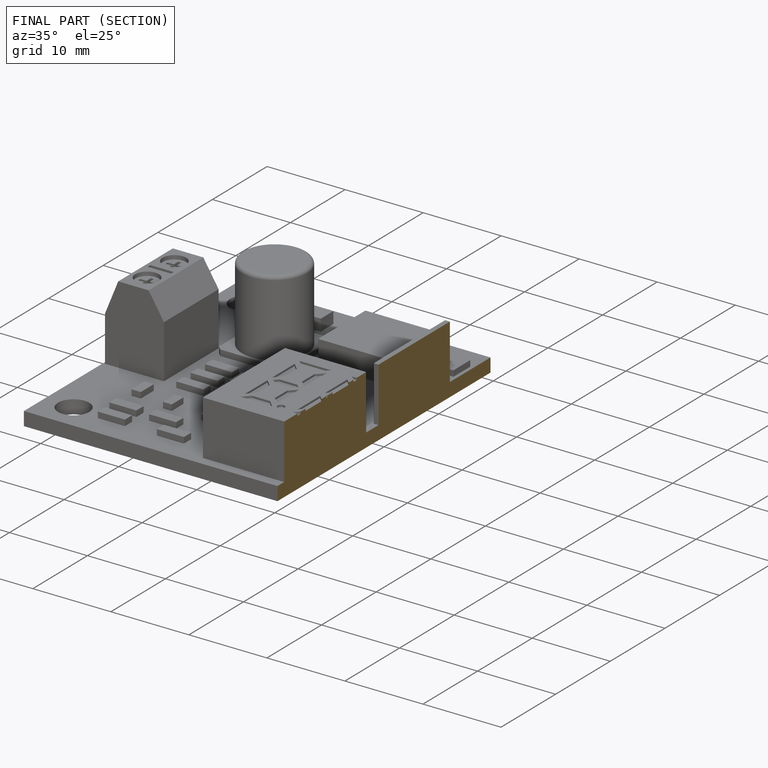
[diagram: finished part — half-section view (interior)]
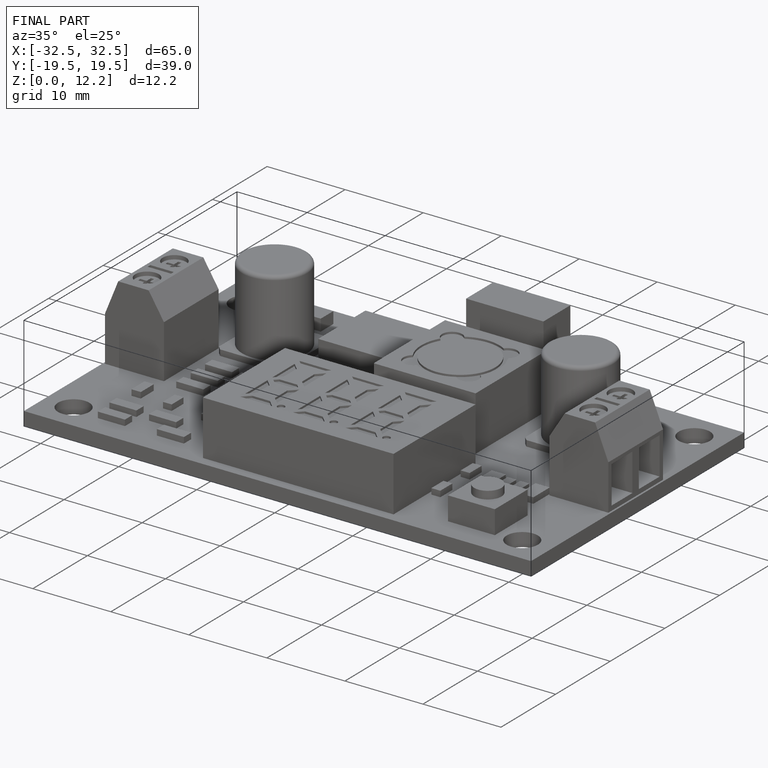
[diagram: finished part — iso view with bounding-box wireframe]
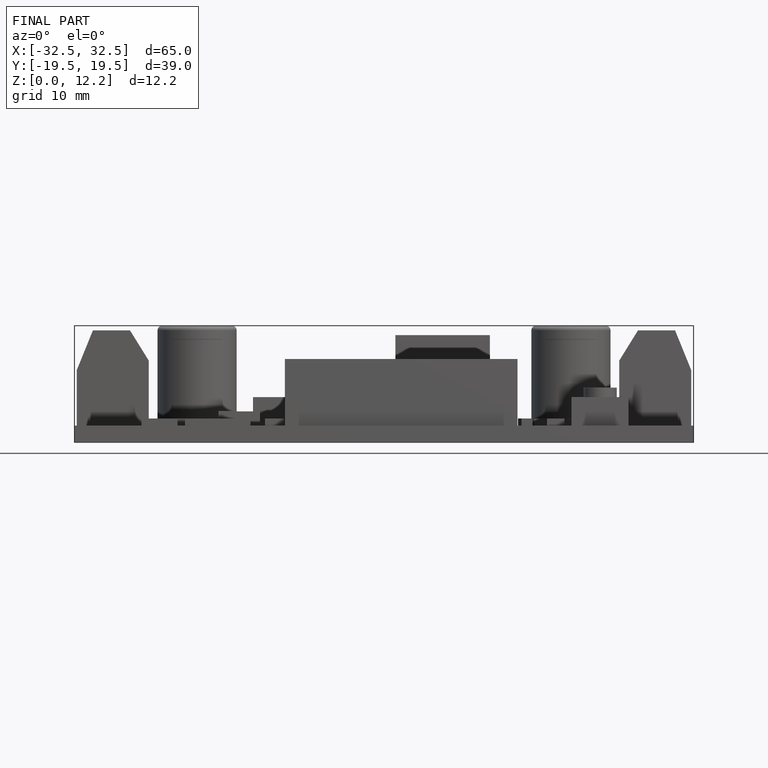
[diagram: finished part — front view with bounding-box wireframe]
